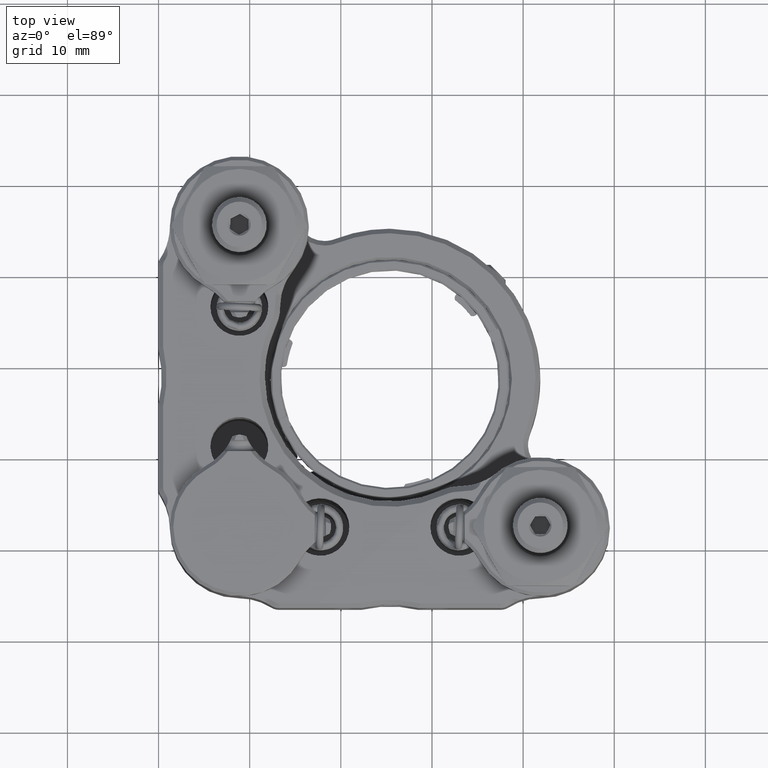
[diagram: clean part render]
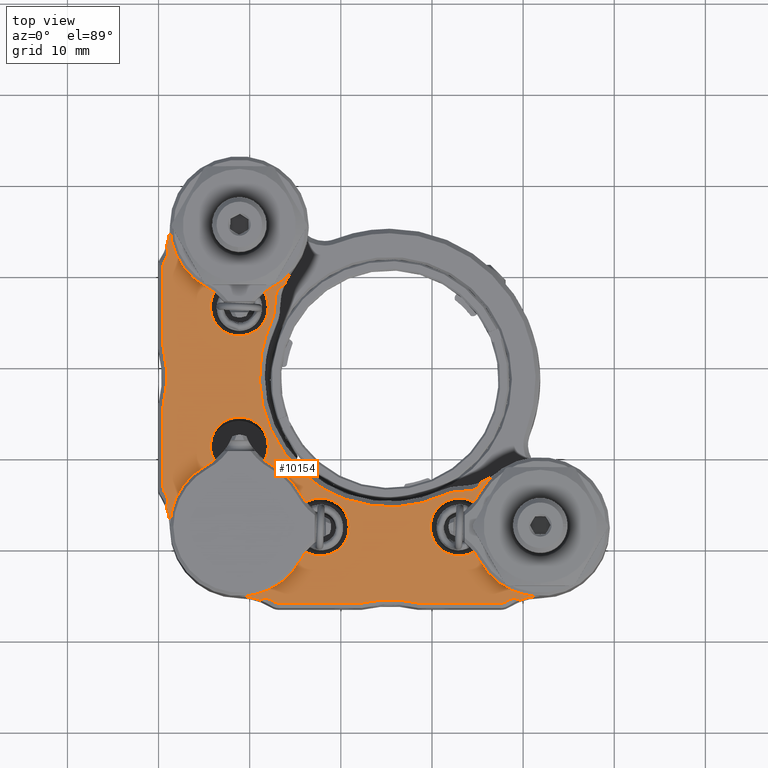
[diagram: same view with one face highlighted and labeled with its STEP entity id]
A machine part, top view. The second image highlights one B-rep face of the part: STEP entity #10154.
In plain terms, the highlighted planar face has unit normal (0, 0, 1).
Its self-contained STEP definition (entity closure, byte-faithful):
#7 = CIRCLE ( 'NONE', #15374, 6.477000000000020741 ) ;
#67 = EDGE_CURVE ( 'NONE', #1891, #23634, #3788, .T. ) ;
#154 = DIRECTION ( 'NONE',  ( -0.000000000000000000, -0.000000000000000000, -1.000000000000000000 ) ) ;
#177 = EDGE_CURVE ( 'NONE', #6340, #20230, #8902, .T. ) ;
#183 = CARTESIAN_POINT ( 'NONE',  ( 12.38436093444902397, 34.61800084301665237, 38.37670909685328979 ) ) ;
#208 = B_SPLINE_CURVE_WITH_KNOTS ( 'NONE', 3,
 ( #9120, #16642, #18723, #1840, #9362, #8883, #16880, #24399, #7515, #5066, #12596, #20059 ),
 .UNSPECIFIED., .F., .F.,
 ( 4, 1, 1, 1, 1, 1, 1, 1, 1, 4 ),
 ( 0.000000000000000000, 0.1110536644831231351, 0.2228147433250605713, 0.3350914532097074017, 0.4476793621340340312, 0.5603666851512870695, 0.6709317720869432122, 0.7811858728531476670, 0.8909357211705750679, 1.000000000000000000 ),
 .UNSPECIFIED. ) ;
#216 = CARTESIAN_POINT ( 'NONE',  ( 0.4955960652789220822, 31.87936282421342682, 38.37670909685328979 ) ) ;
#238 = CARTESIAN_POINT ( 'NONE',  ( 35.18016554447005717, 16.60608547644397959, 38.37670909685328979 ) ) ;
#259 = CARTESIAN_POINT ( 'NONE',  ( 0.6752672816755024288, 26.31757502265822524, 38.37670909685328269 ) ) ;
#264 = ORIENTED_EDGE ( 'NONE', *, *, #18155, .F. ) ;
#277 = ORIENTED_EDGE ( 'NONE', *, *, #20512, .T. ) ;
#313 = DIRECTION ( 'NONE',  ( -0.000000000000000000, -0.000000000000000000, -1.000000000000000000 ) ) ;
#351 = AXIS2_PLACEMENT_3D ( 'NONE', #21424, #14053, #12099 ) ;
#377 = CARTESIAN_POINT ( 'NONE',  ( 0.7869925526974124175, 27.10424239367214128, 38.37670909685330400 ) ) ;
#385 = CIRCLE ( 'NONE', #6696, 6.477000000000000313 ) ;
#393 = CARTESIAN_POINT ( 'NONE',  ( 11.75484474074690411, 33.01592660146320668, 38.37670909685328979 ) ) ;
#439 = CARTESIAN_POINT ( 'NONE',  ( 17.75115173361346876, 12.11409739724833301, 38.37670909685328979 ) ) ;
#488 = DIRECTION ( 'NONE',  ( -0.000000000000000000, -0.000000000000000000, -1.000000000000000000 ) ) ;
#494 = CARTESIAN_POINT ( 'NONE',  ( 30.02085666411165477, 15.09184691535541134, 38.37670909685329690 ) ) ;
#514 = CARTESIAN_POINT ( 'NONE',  ( 11.57401101959112211, 32.40532955672875914, 38.37670909685328979 ) ) ;
#561 = ORIENTED_EDGE ( 'NONE', *, *, #4339, .F. ) ;
#564 = CARTESIAN_POINT ( 'NONE',  ( 11.60252795403088655, 19.40238537003155983, 38.37670909685328979 ) ) ;
#596 = ORIENTED_EDGE ( 'NONE', *, *, #177, .T. ) ;
#618 = CARTESIAN_POINT ( 'NONE',  ( 0.8718547531415058449, 28.36261813054152370, 38.37670909685331111 ) ) ;
#622 = ORIENTED_EDGE ( 'NONE', *, *, #3273, .T. ) ;
#663 = CARTESIAN_POINT ( 'NONE',  ( 0.8224864522627175489, 15.62362773138319127, 38.37670909685329690 ) ) ;
#669 = DIRECTION ( 'NONE',  ( 1.000000000000000000, 0.000000000000000000, 0.000000000000000000 ) ) ;
#774 = CARTESIAN_POINT ( 'NONE',  ( 1.241151733613526931, 12.11409739724833301, 38.37670909685328979 ) ) ;
#830 = EDGE_CURVE ( 'NONE', #9608, #16998, #2197, .T. ) ;
#853 = CARTESIAN_POINT ( 'NONE',  ( 32.24573960693102492, 15.92250113074362972, 38.37670909685328979 ) ) ;
#898 = CARTESIAN_POINT ( 'NONE',  ( 13.02814777642256239, 38.06831724170653786, 38.37670909685328979 ) ) ;
#945 = CARTESIAN_POINT ( 'NONE',  ( 16.14943970639635040, 14.85547361766537477, 38.37670909685328979 ) ) ;
#970 = CARTESIAN_POINT ( 'NONE',  ( 12.94265206135238877, 3.782039316883916591, 38.37670909685321874 ) ) ;
#984 = DIRECTION ( 'NONE',  ( 1.000000000000000000, -2.185478394931410180E-15, 0.000000000000000000 ) ) ;
#1004 = CARTESIAN_POINT ( 'NONE',  ( 22.11588630664790855, 3.748541728913777682, 38.37670909685328979 ) ) ;
#1092 = CARTESIAN_POINT ( 'NONE',  ( 34.10963585028388678, 16.08075227077968705, 38.37670909685335374 ) ) ;
#1164 = EDGE_CURVE ( 'NONE', #20230, #13868, #4156, .T. ) ;
#1202 = CARTESIAN_POINT ( 'NONE',  ( 28.60233475702758454, 3.748770223523156364, 38.37670909685322584 ) ) ;
#1337 = DIRECTION ( 'NONE',  ( 1.000000000000000000, 0.000000000000000000, 0.000000000000000000 ) ) ;
#1353 = VERTEX_POINT ( 'NONE', #9782 ) ;
#1354 = DIRECTION ( 'NONE',  ( 0.000000000000000000, 0.000000000000000000, 1.000000000000000000 ) ) ;
#1358 = DIRECTION ( 'NONE',  ( 1.000000000000000000, 0.000000000000000000, 0.000000000000000000 ) ) ;
#1394 = CARTESIAN_POINT ( 'NONE',  ( 0.5157462184771712810, 31.70719983981903312, 38.37670909685329690 ) ) ;
#1506 = VERTEX_POINT ( 'NONE', #7294 ) ;
#1542 = CARTESIAN_POINT ( 'NONE',  ( 21.23734720772224449, 18.86355623382385360, 38.37670909685328979 ) ) ;
#1607 = CARTESIAN_POINT ( 'NONE',  ( 12.38436093444902397, 34.61800084301665237, 38.37670909685328979 ) ) ;
#1663 = EDGE_CURVE ( 'NONE', #15856, #23557, #23016, .T. ) ;
#1703 = EDGE_CURVE ( 'NONE', #20337, #20563, #15983, .T. ) ;
#1707 = DIRECTION ( 'NONE',  ( -0.000000000000000000, -0.000000000000000000, -1.000000000000000000 ) ) ;
#1738 = DIRECTION ( 'NONE',  ( 1.000000000000000000, 0.000000000000000000, 0.000000000000000000 ) ) ;
#1780 = CARTESIAN_POINT ( 'NONE',  ( 32.13840208789036268, 3.748541728913777682, 38.37670909685328979 ) ) ;
#1807 = DIRECTION ( 'NONE',  ( -0.000000000000000000, -0.000000000000000000, -1.000000000000000000 ) ) ;
#1839 = VERTEX_POINT ( 'NONE', #5747 ) ;
#1840 = CARTESIAN_POINT ( 'NONE',  ( 27.08716817305793967, 4.022155456177253896, 38.37670909685326848 ) ) ;
#1891 = VERTEX_POINT ( 'NONE', #663 ) ;
#1921 = VERTEX_POINT ( 'NONE', #8180 ) ;
#1976 = CARTESIAN_POINT ( 'NONE',  ( 0.6940234623374341716, 30.82469068286791369, 38.37670909685328979 ) ) ;
#2065 = CARTESIAN_POINT ( 'NONE',  ( 0.6517330947429474941, 41.34425421594671235, 38.37670909685322584 ) ) ;
#2082 = CIRCLE ( 'NONE', #6422, 6.476999999999996760 ) ;
#2112 = CARTESIAN_POINT ( 'NONE',  ( 39.62308554504676295, 4.087737074255221259, 38.37670909685328979 ) ) ;
#2138 = CARTESIAN_POINT ( 'NONE',  ( 41.88115173361350685, 4.494097397248490111, 38.37670909685328979 ) ) ;
#2172 = EDGE_CURVE ( 'NONE', #21643, #18780, #3365, .T. ) ;
#2190 = EDGE_CURVE ( 'NONE', #23557, #15430, #9800, .T. ) ;
#2196 = EDGE_CURVE ( 'NONE', #7892, #1921, #14807, .T. ) ;
#2197 = B_SPLINE_CURVE_WITH_KNOTS ( 'NONE', 3,
 ( #5579, #9155, #13120, #9387, #3717, #12755, #16908, #7545, #11376, #1976, #9512, #22072, #3352, #10884, #18377, #7894, #17151, #618, #17381, #9755, #6305, #19467, #5939, #377, #15557, #17267, #11635, #23049, #13469, #4095, #259, #19124, #20953, #15432, #13826 ),
 .UNSPECIFIED., .F., .F.,
 ( 4, 1, 1, 1, 1, 2, 2, 1, 1, 2, 2, 2, 1, 1, 1, 2, 2, 1, 1, 1, 1, 2, 2, 4 ),
 ( 0.000000000000000000, 0.06250000000000655032, 0.09375000000001146305, 0.1093750000000129341, 0.1171875000000147521, 0.1210937500000156680, 0.1250000000000165701, 0.1875000000000206779, 0.2187500000000227318, 0.2343750000000237588, 0.2500000000000247580, 0.5000000000000361933, 0.6250000000000410783, 0.6875000000000435207, 0.7187500000000438538, 0.7343750000000449640, 0.7500000000000460743, 0.8125000000000470735, 0.8437500000000475175, 0.8593750000000469624, 0.8671875000000467404, 0.8710937500000456302, 0.8750000000000446310, 1.000000000000000000 ),
 .UNSPECIFIED. ) ;
#2209 = CARTESIAN_POINT ( 'NONE',  ( 32.99297983232990816, 15.99445688247542385, 38.37670909685328979 ) ) ;
#2220 = CARTESIAN_POINT ( 'NONE',  ( 12.86354231730621933, 21.68415005227346271, 38.37670909685330400 ) ) ;
#2278 = AXIS2_PLACEMENT_3D ( 'NONE', #19677, #14290, #1337 ) ;
#2282 = EDGE_CURVE ( 'NONE', #15104, #14595, #8481, .T. ) ;
#2375 = CARTESIAN_POINT ( 'NONE',  ( 0.6870525337700547075, 41.40067326300700756, 38.37670909685657250 ) ) ;
#2408 = VERTEX_POINT ( 'NONE', #23526 ) ;
#2415 = DIRECTION ( 'NONE',  ( -1.000000000000000000, 0.000000000000000000, 0.000000000000000000 ) ) ;
#2418 = VERTEX_POINT ( 'NONE', #4811 ) ;
#2447 = CARTESIAN_POINT ( 'NONE',  ( 22.13583710122836834, 14.67310542938333562, 38.37670909685328979 ) ) ;
#2525 = ORIENTED_EDGE ( 'NONE', *, *, #6129, .T. ) ;
#2578 = CARTESIAN_POINT ( 'NONE',  ( 27.55922645416164940, 14.48479695365101527, 38.37670909685328979 ) ) ;
#2602 = CARTESIAN_POINT ( 'NONE',  ( 13.78516344865819043, 38.63748849390084672, 38.37670909685328979 ) ) ;
#2625 = CARTESIAN_POINT ( 'NONE',  ( 0.5023019450091797955, 25.46939542328768269, 38.37670909685325427 ) ) ;
#2673 = CARTESIAN_POINT ( 'NONE',  ( 0.4955960652789220822, 40.79002902762141503, 38.37670909685328979 ) ) ;
#2677 = EDGE_CURVE ( 'NONE', #15430, #5882, #10386, .T. ) ;
#2698 = VERTEX_POINT ( 'NONE', #10179 ) ;
#2723 = CARTESIAN_POINT ( 'NONE',  ( 12.92263567735286145, 37.85627406329982847, 38.37670909685328979 ) ) ;
#2791 = CARTESIAN_POINT ( 'NONE',  ( 28.46246146862687354, 3.766829974628029820, 38.37670909685329690 ) ) ;
#2911 = VECTOR ( 'NONE', #20603, 1000.000000000000000 ) ;
#2964 = DIRECTION ( 'NONE',  ( 0.000000000000000000, 0.000000000000000000, 1.000000000000000000 ) ) ;
#2967 = VERTEX_POINT ( 'NONE', #7079 ) ;
#3039 = CARTESIAN_POINT ( 'NONE',  ( 15.55098712502337222, 8.465741269369299715, 38.37670909685328979 ) ) ;
#3040 = CARTESIAN_POINT ( 'NONE',  ( 13.00951303236838186, 3.767007923499976929, 38.37670909685322584 ) ) ;
#3066 = ORIENTED_EDGE ( 'NONE', *, *, #5131, .F. ) ;
#3233 = VERTEX_POINT ( 'NONE', #7180 ) ;
#3273 = EDGE_CURVE ( 'NONE', #14052, #22757, #4978, .T. ) ;
#3287 = ORIENTED_EDGE ( 'NONE', *, *, #22069, .F. ) ;
#3324 = VERTEX_POINT ( 'NONE', #14211 ) ;
#3352 = CARTESIAN_POINT ( 'NONE',  ( 0.7673830441813436209, 30.31021214766289162, 38.37670909685328979 ) ) ;
#3360 = CARTESIAN_POINT ( 'NONE',  ( 0.4958245598883168626, 31.85528042066255949, 38.37670909685322584 ) ) ;
#3365 = CIRCLE ( 'NONE', #17153, 6.477000000000002089 ) ;
#3375 = DIRECTION ( 'NONE',  ( -1.000000000000000000, 0.000000000000000000, 0.000000000000000000 ) ) ;
#3481 = CARTESIAN_POINT ( 'NONE',  ( 12.37068206774825896, 4.075432115897614338, 38.37670909685328979 ) ) ;
#3488 = CARTESIAN_POINT ( 'NONE',  ( 8.861151733613644055, 21.00409739724833358, 38.37670909685328979 ) ) ;
#3500 = CARTESIAN_POINT ( 'NONE',  ( 39.00821912320733986, 2.976503847927632673, 38.37670909685328979 ) ) ;
#3508 = CARTESIAN_POINT ( 'NONE',  ( 11.96478324836953355, 33.60161499620866010, 38.37670909685328979 ) ) ;
#3532 = EDGE_CURVE ( 'NONE', #11609, #15495, #15451, .T. ) ;
#3542 = CARTESIAN_POINT ( 'NONE',  ( 0.5140622598650981256, 40.98573609849339050, 38.37670909685322584 ) ) ;
#3554 = ORIENTED_EDGE ( 'NONE', *, *, #23584, .F. ) ;
#3595 = CARTESIAN_POINT ( 'NONE',  ( 0.5018832821274912259, 31.78187945392570768, 38.37670909685331821 ) ) ;
#3619 = ORIENTED_EDGE ( 'NONE', *, *, #20896, .F. ) ;
#3679 = VERTEX_POINT ( 'NONE', #21719 ) ;
#3717 = CARTESIAN_POINT ( 'NONE',  ( 0.6581527438159207044, 31.02488902221040945, 38.37670909685328979 ) ) ;
#3731 = CARTESIAN_POINT ( 'NONE',  ( 21.23734720772239726, 5.364638560672374545, 38.37670909685328979 ) ) ;
#3733 = VERTEX_POINT ( 'NONE', #18265 ) ;
#3735 = CARTESIAN_POINT ( 'NONE',  ( 34.59286376082986436, 9.372721176830863143, 38.37670909685328979 ) ) ;
#3740 = CIRCLE ( 'NONE', #9280, 7.619999999999767404 ) ;
#3781 = EDGE_CURVE ( 'NONE', #9845, #10509, #8767, .T. ) ;
#3788 = CIRCLE ( 'NONE', #20693, 1.270000000000015561 ) ;
#3798 = CARTESIAN_POINT ( 'NONE',  ( 0.5989083507306648402, 41.24733027897404014, 38.37670909685321874 ) ) ;
#3801 = DIRECTION ( 'NONE',  ( -0.000000000000000000, -0.000000000000000000, -1.000000000000000000 ) ) ;
#3811 = B_SPLINE_CURVE_WITH_KNOTS ( 'NONE', 3,
 ( #4075, #17133, #238, #7874, #7764, #11731 ),
 .UNSPECIFIED., .F., .F.,
 ( 4, 2, 4 ),
 ( 0.000000000000000000, 0.5000000000000000000, 1.000000000000000000 ),
 .UNSPECIFIED. ) ;
#3843 = B_SPLINE_CURVE_WITH_KNOTS ( 'NONE', 3,
 ( #11440, #20769, #15735, #7965, #19288 ),
 .UNSPECIFIED., .F., .F.,
 ( 4, 1, 4 ),
 ( 2.409954872719146512E-17, 0.0001717361873784960713, 0.0003066707525924551960 ),
 .UNSPECIFIED. ) ;
#3850 = DIRECTION ( 'NONE',  ( 1.000000000000000000, 0.000000000000000000, 0.000000000000000000 ) ) ;
#3856 = DIRECTION ( 'NONE',  ( -0.000000000000000000, -0.000000000000000000, -1.000000000000000000 ) ) ;
#3881 = CARTESIAN_POINT ( 'NONE',  ( 12.19412862448400681, 34.17338430119600901, 38.37670909685329690 ) ) ;
#3951 = CARTESIAN_POINT ( 'NONE',  ( 23.57972695046473532, 14.42853370877505448, 38.37670909685328979 ) ) ;
#4025 = VECTOR ( 'NONE', #19965, 1000.000000000000000 ) ;
#4031 = CARTESIAN_POINT ( 'NONE',  ( 12.42004143109463143, 4.046432885193219420, 38.37670909685657961 ) ) ;
#4050 = CARTESIAN_POINT ( 'NONE',  ( 0.4955960652789220822, 40.79002902762141503, 38.37670909685328979 ) ) ;
#4075 = CARTESIAN_POINT ( 'NONE',  ( 35.38451088181182058, 17.03809650157964128, 38.37670909685328979 ) ) ;
#4076 = CARTESIAN_POINT ( 'NONE',  ( 32.43240289522068309, 15.95459418391246409, 38.37670909685328979 ) ) ;
#4090 = CARTESIAN_POINT ( 'NONE',  ( 13.32398532527555268, 20.89903289220994864, 38.37670909685328979 ) ) ;
#4095 = CARTESIAN_POINT ( 'NONE',  ( 0.6779026985890350687, 26.33265588743645935, 38.37670909685329690 ) ) ;
#4110 = CARTESIAN_POINT ( 'NONE',  ( 11.23181361473330497, 30.81157762427039870, 38.37670909685331111 ) ) ;
#4154 = DIRECTION ( 'NONE',  ( -0.000000000000000000, -0.000000000000000000, -1.000000000000000000 ) ) ;
#4156 = CIRCLE ( 'NONE', #5347, 3.174999999999997158 ) ;
#4163 = CARTESIAN_POINT ( 'NONE',  ( -0.2764418157071950599, 14.98703000765439697, 38.37670909685329690 ) ) ;
#4168 = AXIS2_PLACEMENT_3D ( 'NONE', #16530, #22678, #5809 ) ;
#4203 = VERTEX_POINT ( 'NONE', #9847 ) ;
#4211 = CARTESIAN_POINT ( 'NONE',  ( 29.67614439951547212, 14.97670351789416721, 38.37670909685329690 ) ) ;
#4230 = CARTESIAN_POINT ( 'NONE',  ( 11.94067263501937504, 33.53824504982272714, 38.37670909685328979 ) ) ;
#4243 = CARTESIAN_POINT ( 'NONE',  ( 32.99630792260517609, 23.05872893302826299, 38.37670909685328979 ) ) ;
#4273 = ORIENTED_EDGE ( 'NONE', *, *, #15755, .T. ) ;
#4290 = EDGE_CURVE ( 'NONE', #21159, #14595, #4501, .T. ) ;
#4315 = CARTESIAN_POINT ( 'NONE',  ( 31.36505517938176268, 15.63730659808388523, 38.37670909685328979 ) ) ;
#4330 = CARTESIAN_POINT ( 'NONE',  ( 13.04442159254060307, 21.36758729914661359, 38.37670909685330400 ) ) ;
#4339 = EDGE_CURVE ( 'NONE', #18520, #17587, #5716, .T. ) ;
#4373 = CARTESIAN_POINT ( 'NONE',  ( 0.8224864522627211016, 41.62456706311347432, 38.37670909685328979 ) ) ;
#4379 = CARTESIAN_POINT ( 'NONE',  ( 0.7417030516560364495, 41.48706626996447966, 38.37670909685657250 ) ) ;
#4403 = CARTESIAN_POINT ( 'NONE',  ( 0.5157462184768729641, 25.54099495467687575, 38.37670909685328979 ) ) ;
#4486 = CARTESIAN_POINT ( 'NONE',  ( 0.6630064067489199742, 15.88553429512048609, 38.37670909685328979 ) ) ;
#4488 = EDGE_CURVE ( 'NONE', #2698, #8080, #7090, .T. ) ;
#4501 = CIRCLE ( 'NONE', #17872, 7.619999999999842011 ) ;
#4606 = CARTESIAN_POINT ( 'NONE',  ( 0.5290936532490069233, 16.19559772498726602, 38.37670909685323295 ) ) ;
#4612 = CARTESIAN_POINT ( 'NONE',  ( 12.50818286089736553, 3.994648715290856966, 38.37670909685658671 ) ) ;
#4637 = CARTESIAN_POINT ( 'NONE',  ( 14.77716877998100564, 40.33147912102782584, 38.37670909685328979 ) ) ;
#4668 = CARTESIAN_POINT ( 'NONE',  ( 28.45425417618413633, 3.768691882111999014, 38.37670909685328979 ) ) ;
#4693 = CIRCLE ( 'NONE', #351, 6.477000000000024293 ) ;
#4723 = VERTEX_POINT ( 'NONE', #23061 ) ;
#4754 = VERTEX_POINT ( 'NONE', #10863 ) ;
#4766 = AXIS2_PLACEMENT_3D ( 'NONE', #3500, #18407, #5616 ) ;
#4811 = CARTESIAN_POINT ( 'NONE',  ( 5.686151733613641568, 21.00409739724833358, 38.37670909685328979 ) ) ;
#4834 = CARTESIAN_POINT ( 'NONE',  ( 22.12430173022738344, 3.748625363182293224, 38.37670909685326848 ) ) ;
#4856 = ORIENTED_EDGE ( 'NONE', *, *, #16665, .F. ) ;
#4885 = DIRECTION ( 'NONE',  ( 0.000000000000000000, 0.000000000000000000, 1.000000000000000000 ) ) ;
#4890 = VERTEX_POINT ( 'NONE', #9257 ) ;
#4919 = AXIS2_PLACEMENT_3D ( 'NONE', #439, #4154, #15135 ) ;
#4923 = CARTESIAN_POINT ( 'NONE',  ( 12.74791885188774287, 3.851854014365566847, 38.37670909685321874 ) ) ;
#4958 = EDGE_CURVE ( 'NONE', #3233, #21869, #3811, .T. ) ;
#4978 = LINE ( 'NONE', #18257, #4025 ) ;
#5036 = DIRECTION ( 'NONE',  ( 0.000000000000000000, 0.000000000000000000, 1.000000000000000000 ) ) ;
#5066 = CARTESIAN_POINT ( 'NONE',  ( 22.95496992010462733, 3.916075550506173286, 38.37670909685327558 ) ) ;
#5121 = CIRCLE ( 'NONE', #8241, 7.619999999999842011 ) ;
#5131 = EDGE_CURVE ( 'NONE', #15856, #22345, #18207, .T. ) ;
#5184 = ORIENTED_EDGE ( 'NONE', *, *, #20094, .T. ) ;
#5297 = CIRCLE ( 'NONE', #8029, 3.175000000000000711 ) ;
#5307 = B_SPLINE_CURVE_WITH_KNOTS ( 'NONE', 3,
 ( #14835, #22324, #3360, #12998, #20464, #3595, #10892, #18383, #6949, #7426 ),
 .UNSPECIFIED., .F., .F.,
 ( 4, 1, 1, 1, 1, 1, 1, 4 ),
 ( 0.000000000000000000, 2.433994098074037423E-05, 4.863949341362251380E-05, 7.291449240922209406E-05, 9.718058732157807810E-05, 0.0001226095285271820397, 0.0001480637752878644065, 0.0001735615155480441432 ),
 .UNSPECIFIED. ) ;
#5333 = ORIENTED_EDGE ( 'NONE', *, *, #7684, .T. ) ;
#5342 = CARTESIAN_POINT ( 'NONE',  ( 35.19131634220291716, 15.76245352512689557, 38.37670909685328979 ) ) ;
#5347 = AXIS2_PLACEMENT_3D ( 'NONE', #10601, #19686, #23525 ) ;
#5393 = ORIENTED_EDGE ( 'NONE', *, *, #23735, .F. ) ;
#5431 = ORIENTED_EDGE ( 'NONE', *, *, #16226, .T. ) ;
#5448 = DIRECTION ( 'NONE',  ( -0.000000000000000000, -0.000000000000000000, -1.000000000000000000 ) ) ;
#5522 = AXIS2_PLACEMENT_3D ( 'NONE', #23845, #14241, #17801 ) ;
#5535 = VERTEX_POINT ( 'NONE', #11452 ) ;
#5547 = ORIENTED_EDGE ( 'NONE', *, *, #18440, .F. ) ;
#5560 = EDGE_CURVE ( 'NONE', #9768, #1506, #16287, .T. ) ;
#5579 = CARTESIAN_POINT ( 'NONE',  ( 0.5157462184771712810, 31.70719983981903312, 38.37670909685329690 ) ) ;
#5591 = CARTESIAN_POINT ( 'NONE',  ( 37.99438461533913625, 3.851854014365486911, 38.37670909685322584 ) ) ;
#5616 = DIRECTION ( 'NONE',  ( 1.000000000000000000, 3.414809992080290862E-15, 0.000000000000000000 ) ) ;
#5661 = CARTESIAN_POINT ( 'NONE',  ( 0.5290936532490100319, 41.05259706950933207, 38.37670909685321874 ) ) ;
#5693 = CARTESIAN_POINT ( 'NONE',  ( -5.235848266386701866, 12.11409739724832235, 38.37670909685328979 ) ) ;
#5716 = LINE ( 'NONE', #9770, #2911 ) ;
#5747 = CARTESIAN_POINT ( 'NONE',  ( 13.78516344865819043, 38.63748849390084672, 38.37670909685328979 ) ) ;
#5809 = DIRECTION ( 'NONE',  ( 1.000000000000000000, -1.419489643766718154E-14, 0.000000000000000000 ) ) ;
#5815 = CARTESIAN_POINT ( 'NONE',  ( 25.38411258108517998, 14.28715967470755643, 38.37670909685328979 ) ) ;
#5831 = ORIENTED_EDGE ( 'NONE', *, *, #2282, .T. ) ;
#5882 = VERTEX_POINT ( 'NONE', #18796 ) ;
#5904 = DIRECTION ( 'NONE',  ( 1.000000000000000000, 1.229331597148903322E-14, 0.000000000000000000 ) ) ;
#5934 = CARTESIAN_POINT ( 'NONE',  ( 28.62699423142782251, 14.69096499421558377, 38.37670909685328979 ) ) ;
#5939 = CARTESIAN_POINT ( 'NONE',  ( 0.7903750614217812664, 27.13475342297903481, 38.37670909685330400 ) ) ;
#5953 = CARTESIAN_POINT ( 'NONE',  ( 10.99774249357643363, 29.00008945594158050, 38.37670909685328269 ) ) ;
#6083 = DIRECTION ( 'NONE',  ( -1.000000000000000000, 0.000000000000000000, 0.000000000000000000 ) ) ;
#6086 = CARTESIAN_POINT ( 'NONE',  ( 11.85861473182862902, 33.31544134893639608, 38.37670909685328979 ) ) ;
#6096 = CARTESIAN_POINT ( 'NONE',  ( 0.9935581842928187246, 42.26116478684227218, 38.37670909685328979 ) ) ;
#6129 = EDGE_CURVE ( 'NONE', #9547, #3679, #18324, .T. ) ;
#6180 = CARTESIAN_POINT ( 'NONE',  ( 30.58043351888250427, 15.30885854565100068, 38.37670909685329690 ) ) ;
#6206 = CARTESIAN_POINT ( 'NONE',  ( 12.87492903203330386, 37.61571259436085057, 38.37670909685328979 ) ) ;
#6305 = CARTESIAN_POINT ( 'NONE',  ( 0.8073501095597914734, 27.29595203836036532, 38.37670909685328269 ) ) ;
#6340 = VERTEX_POINT ( 'NONE', #3735 ) ;
#6367 = EDGE_CURVE ( 'NONE', #2418, #11609, #16531, .T. ) ;
#6394 = CARTESIAN_POINT ( 'NONE',  ( 28.62641716057850161, 3.748541728913715065, 38.37670909685325427 ) ) ;
#6405 = CARTESIAN_POINT ( 'NONE',  ( 34.27844610519666446, 16.11217768303501074, 38.37670909685331111 ) ) ;
#6422 = AXIS2_PLACEMENT_3D ( 'NONE', #4243, #6454, #21339 ) ;
#6454 = DIRECTION ( 'NONE',  ( -0.000000000000000000, -0.000000000000000000, -1.000000000000000000 ) ) ;
#6515 = CARTESIAN_POINT ( 'NONE',  ( 28.52893379029081800, 3.754828945762327397, 38.37670909685331821 ) ) ;
#6540 = ORIENTED_EDGE ( 'NONE', *, *, #10075, .F. ) ;
#6556 = EDGE_CURVE ( 'NONE', #4723, #15019, #22040, .T. ) ;
#6579 = CARTESIAN_POINT ( 'NONE',  ( 12.59457586785475058, 3.939998197404931179, 38.37670909685657961 ) ) ;
#6696 = AXIS2_PLACEMENT_3D ( 'NONE', #17553, #8310, #8188 ) ;
#6914 = ORIENTED_EDGE ( 'NONE', *, *, #11786, .F. ) ;
#6929 = DIRECTION ( 'NONE',  ( -0.000000000000000000, -0.000000000000000000, -1.000000000000000000 ) ) ;
#6949 = CARTESIAN_POINT ( 'NONE',  ( 0.5138843109931973130, 31.71540713226175967, 38.37670909685329690 ) ) ;
#6965 = CARTESIAN_POINT ( 'NONE',  ( 12.03615173361364654, 36.24409739724833202, 38.37670909685328979 ) ) ;
#7005 = CARTESIAN_POINT ( 'NONE',  ( 35.19131634220313742, 8.465741269369379651, 38.37670909685328979 ) ) ;
#7036 = CARTESIAN_POINT ( 'NONE',  ( 8.861151733613292336, 12.11409739724833301, 38.37670909685328979 ) ) ;
#7051 = VERTEX_POINT ( 'NONE', #17470 ) ;
#7079 = CARTESIAN_POINT ( 'NONE',  ( 12.63258863148555555, 3.915952070383796446, 38.37670909685328979 ) ) ;
#7090 = B_SPLINE_CURVE_WITH_KNOTS ( 'NONE', 3,
 ( #17395, #8033, #15564, #5591, #13130, #16920, #8396, #15798, #11996, #23305, #8148, #16044 ),
 .UNSPECIFIED., .F., .F.,
 ( 4, 1, 1, 1, 1, 1, 1, 1, 1, 4 ),
 ( 0.000000000000000000, 6.788893391202076755E-05, 0.0001353486219821802298, 0.0002025145720739760197, 0.0002695107963978333001, 0.0003364539762344799317, 0.0004022610529734794473, 0.0004682380276493770354, 0.0005345027875534671697, 0.0006011840429156051473 ),
 .UNSPECIFIED. ) ;
#7098 = AXIS2_PLACEMENT_3D ( 'NONE', #21976, #23955, #16807 ) ;
#7173 = VECTOR ( 'NONE', #23293, 1000.000000000000000 ) ;
#7180 = CARTESIAN_POINT ( 'NONE',  ( 35.38451088181182058, 17.03809650157964128, 38.37670909685328979 ) ) ;
#7219 = CARTESIAN_POINT ( 'NONE',  ( 17.75115173361346876, 12.11409739724833301, 38.37670909685328979 ) ) ;
#7268 = VERTEX_POINT ( 'NONE', #22625 ) ;
#7288 = CARTESIAN_POINT ( 'NONE',  ( 29.50495625950411593, 18.86355623382385360, 38.37670909685328979 ) ) ;
#7290 = CARTESIAN_POINT ( 'NONE',  ( 8.861151733613645831, 45.13409739724845338, 38.37670909685328979 ) ) ;
#7294 = CARTESIAN_POINT ( 'NONE',  ( 11.73408434401946998, 4.246503847927716180, 38.37670909685328979 ) ) ;
#7399 = CIRCLE ( 'NONE', #2278, 1.270000000000014229 ) ;
#7426 = CARTESIAN_POINT ( 'NONE',  ( 0.5157462184771712810, 31.70719983981903312, 38.37670909685329690 ) ) ;
#7431 = AXIS2_PLACEMENT_3D ( 'NONE', #7288, #6929, #12609 ) ;
#7443 = EDGE_CURVE ( 'NONE', #19994, #15495, #15832, .T. ) ;
#7486 = DIRECTION ( 'NONE',  ( -0.000000000000000000, -0.000000000000000000, -1.000000000000000000 ) ) ;
#7489 = ORIENTED_EDGE ( 'NONE', *, *, #1164, .T. ) ;
#7515 = CARTESIAN_POINT ( 'NONE',  ( 23.63043236707065375, 4.018793530060095875, 38.37670909685328269 ) ) ;
#7532 = CARTESIAN_POINT ( 'NONE',  ( 12.61449817399354245, 35.13589714936236419, 38.37670909685328979 ) ) ;
#7545 = CARTESIAN_POINT ( 'NONE',  ( 0.6707767699948714579, 30.95585384594103928, 38.37670909685329690 ) ) ;
#7566 = CIRCLE ( 'NONE', #15438, 3.175000000000000711 ) ;
#7670 = CARTESIAN_POINT ( 'NONE',  ( 26.47055007258569148, 14.34424125510832759, 38.37670909685328979 ) ) ;
#7684 = EDGE_CURVE ( 'NONE', #9845, #2418, #7566, .T. ) ;
#7687 = CARTESIAN_POINT ( 'NONE',  ( 6.119775513196177741, 19.40238537003193642, 38.37670909685328979 ) ) ;
#7742 = CARTESIAN_POINT ( 'NONE',  ( 0.5483680469870982899, 41.11906931882678151, 38.37670909685322584 ) ) ;
#7749 = ORIENTED_EDGE ( 'NONE', *, *, #24310, .F. ) ;
#7764 = CARTESIAN_POINT ( 'NONE',  ( 34.60385525189228417, 16.17568582302490654, 38.37670909685329690 ) ) ;
#7776 = CARTESIAN_POINT ( 'NONE',  ( 19.07768561949591302, 15.77850265189336199, 38.37670909685328979 ) ) ;
#7827 = CARTESIAN_POINT ( 'NONE',  ( 0.7934872215583396171, 41.57520769976713382, 38.37670909685657250 ) ) ;
#7865 = CIRCLE ( 'NONE', #15757, 1.270000000000012452 ) ;
#7874 = CARTESIAN_POINT ( 'NONE',  ( 34.81555263887436524, 16.28089020465142767, 38.37670909685328269 ) ) ;
#7889 = CARTESIAN_POINT ( 'NONE',  ( 12.77524609468842520, 21.84568494314090259, 38.37670909685329690 ) ) ;
#7892 = VERTEX_POINT ( 'NONE', #6096 ) ;
#7894 = CARTESIAN_POINT ( 'NONE',  ( 0.8424803800831450751, 29.65867205113472238, 38.37670909685328979 ) ) ;
#7965 = CARTESIAN_POINT ( 'NONE',  ( 38.14772759937206104, 3.939998197404874780, 38.37670909685659382 ) ) ;
#8029 = AXIS2_PLACEMENT_3D ( 'NONE', #23764, #8474, #14405 ) ;
#8033 = CARTESIAN_POINT ( 'NONE',  ( 38.09130855231178003, 3.904678758377772230, 38.37670909685321874 ) ) ;
#8046 = CARTESIAN_POINT ( 'NONE',  ( 0.5034280512784787831, 16.32886975185273570, 38.37670909685323295 ) ) ;
#8063 = CARTESIAN_POINT ( 'NONE',  ( 0.5157462184768729641, 25.54099495467687575, 38.37670909685328979 ) ) ;
#8080 = VERTEX_POINT ( 'NONE', #18626 ) ;
#8148 = CARTESIAN_POINT ( 'NONE',  ( 37.55827474563724167, 3.748943838127205108, 38.37670909685321874 ) ) ;
#8170 = DIRECTION ( 'NONE',  ( -0.000000000000000000, -0.000000000000000000, -1.000000000000000000 ) ) ;
#8180 = CARTESIAN_POINT ( 'NONE',  ( 0.8347914106204418205, 42.87603120868145368, 38.37670909685317611 ) ) ;
#8188 = DIRECTION ( 'NONE',  ( 1.000000000000000000, 5.356564693459339226E-15, 0.000000000000000000 ) ) ;
#8224 = CARTESIAN_POINT ( 'NONE',  ( 11.61439956670863261, 24.69039808305371864, 38.37670909685328269 ) ) ;
#8241 = AXIS2_PLACEMENT_3D ( 'NONE', #24084, #11030, #3375 ) ;
#8310 = DIRECTION ( 'NONE',  ( -0.000000000000000000, -0.000000000000000000, -1.000000000000000000 ) ) ;
#8345 = CARTESIAN_POINT ( 'NONE',  ( 29.50495625950396317, 5.364638560672374545, 38.37670909685328979 ) ) ;
#8348 = CARTESIAN_POINT ( 'NONE',  ( 0.6870525337700298385, 15.84752153148968823, 38.37670909685657961 ) ) ;
#8396 = CARTESIAN_POINT ( 'NONE',  ( 37.79965140587442818, 3.782039316883831770, 38.37670909685321874 ) ) ;
#8432 = CARTESIAN_POINT ( 'NONE',  ( 0.5104074525255818395, 25.51751066314637839, 38.37670909685324716 ) ) ;
#8474 = DIRECTION ( 'NONE',  ( -0.000000000000000000, -0.000000000000000000, -1.000000000000000000 ) ) ;
#8477 = CARTESIAN_POINT ( 'NONE',  ( 13.18402872158956818, 3.748943838127289485, 38.37670909685322584 ) ) ;
#8481 = CIRCLE ( 'NONE', #4168, 6.477000000000031399 ) ;
#8517 = DIRECTION ( 'NONE',  ( -1.000000000000000000, 0.000000000000000000, 0.000000000000000000 ) ) ;
#8551 = CIRCLE ( 'NONE', #22321, 3.175000000000000711 ) ;
#8570 = ORIENTED_EDGE ( 'NONE', *, *, #17974, .F. ) ;
#8580 = CARTESIAN_POINT ( 'NONE',  ( 34.36276693072596089, 16.12787469566814025, 38.37670909685328979 ) ) ;
#8703 = CARTESIAN_POINT ( 'NONE',  ( 11.96074622682672839, 33.59106138881092107, 38.37670909685330400 ) ) ;
#8711 = ORIENTED_EDGE ( 'NONE', *, *, #4958, .T. ) ;
#8725 = CARTESIAN_POINT ( 'NONE',  ( 13.14177832103617938, 3.749745544954072418, 38.37670909685322584 ) ) ;
#8767 = CIRCLE ( 'NONE', #17041, 6.477000000000009194 ) ;
#8831 = VECTOR ( 'NONE', #9307, 1000.000000000000000 ) ;
#8883 = CARTESIAN_POINT ( 'NONE',  ( 25.69563052600467401, 4.126933891821753519, 38.37670909685326848 ) ) ;
#8902 = CIRCLE ( 'NONE', #12068, 3.174999999999997158 ) ;
#9018 = CARTESIAN_POINT ( 'NONE',  ( 12.03615173361364477, 21.00409739724833358, 38.37670909685328979 ) ) ;
#9120 = CARTESIAN_POINT ( 'NONE',  ( 28.45425417618413633, 3.768691882111999014, 38.37670909685328979 ) ) ;
#9143 = DIRECTION ( 'NONE',  ( -0.000000000000000000, -0.000000000000000000, 1.000000000000000000 ) ) ;
#9155 = CARTESIAN_POINT ( 'NONE',  ( 0.5527938928083925285, 31.53933109440058757, 38.37670909685330400 ) ) ;
#9237 = CIRCLE ( 'NONE', #4919, 3.175000000000000711 ) ;
#9257 = CARTESIAN_POINT ( 'NONE',  ( 20.92615173361346947, 12.11409739724833301, 38.37670909685328979 ) ) ;
#9280 = AXIS2_PLACEMENT_3D ( 'NONE', #7036, #12736, #8517 ) ;
#9307 = DIRECTION ( 'NONE',  ( 1.000000000000000000, 0.000000000000000000, -0.000000000000000000 ) ) ;
#9320 = CARTESIAN_POINT ( 'NONE',  ( 12.05561866692576167, 33.83810532993024367, 38.37670909685329690 ) ) ;
#9362 = CARTESIAN_POINT ( 'NONE',  ( 26.39334182759852609, 4.092731769619485149, 38.37670909685328269 ) ) ;
#9387 = CARTESIAN_POINT ( 'NONE',  ( 0.6412167288133668874, 31.11371144419296186, 38.37670909685328979 ) ) ;
#9389 = B_SPLINE_CURVE_WITH_KNOTS ( 'NONE', 3,
 ( #14189, #12118, #23429, #23545, #21562, #15925, #14071, #21686, #4834, #1004 ),
 .UNSPECIFIED., .F., .F.,
 ( 4, 1, 1, 1, 1, 1, 1, 4 ),
 ( 0.000000000000000000, 2.433994098069797854E-05, 4.863949341351982630E-05, 7.291449240907639084E-05, 9.718058732137874753E-05, 0.0001226095285269497223, 0.0001480637752875925428, 0.0001735615155477096940 ),
 .UNSPECIFIED. ) ;
#9458 = EDGE_CURVE ( 'NONE', #16998, #17587, #15167, .T. ) ;
#9512 = CARTESIAN_POINT ( 'NONE',  ( 0.7238495687733950135, 30.63822880608636723, 38.37670909685328269 ) ) ;
#9547 = VERTEX_POINT ( 'NONE', #4373 ) ;
#9553 = AXIS2_PLACEMENT_3D ( 'NONE', #20193, #1354, #12853 ) ;
#9561 = CARTESIAN_POINT ( 'NONE',  ( 0.8224864522627211016, 41.62456706311347432, 38.37670909685328979 ) ) ;
#9592 = DIRECTION ( 'NONE',  ( 1.000000000000000000, 0.000000000000000000, 0.000000000000000000 ) ) ;
#9608 = VERTEX_POINT ( 'NONE', #1394 ) ;
#9643 = CARTESIAN_POINT ( 'NONE',  ( 17.45342955377333993, 16.62400746861901268, 38.37670909685329690 ) ) ;
#9673 = ORIENTED_EDGE ( 'NONE', *, *, #14444, .T. ) ;
#9721 = DIRECTION ( 'NONE',  ( 1.000000000000000000, -1.092739197465706273E-15, 0.000000000000000000 ) ) ;
#9755 = CARTESIAN_POINT ( 'NONE',  ( 0.8283708051813551965, 27.52178918405195773, 38.37670909685329690 ) ) ;
#9768 = VERTEX_POINT ( 'NONE', #3481 ) ;
#9770 = CARTESIAN_POINT ( 'NONE',  ( 0.4955960652788873877, 16.45816576687524702, 38.37670909685329690 ) ) ;
#9773 = CARTESIAN_POINT ( 'NONE',  ( 11.44147507252707108, 31.87983471343656205, 38.37670909685328979 ) ) ;
#9782 = CARTESIAN_POINT ( 'NONE',  ( 22.28804929104198607, 3.768691882111749436, 38.37670909685328979 ) ) ;
#9800 = B_SPLINE_CURVE_WITH_KNOTS ( 'NONE', 3,
 ( #1607, #7532, #15064, #16661 ),
 .UNSPECIFIED., .F., .F.,
 ( 4, 4 ),
 ( 0.000000000000000000, 1.000000000000000000 ),
 .UNSPECIFIED. ) ;
#9809 = AXIS2_PLACEMENT_3D ( 'NONE', #21544, #488, #984 ) ;
#9837 = EDGE_CURVE ( 'NONE', #18384, #4203, #16612, .T. ) ;
#9845 = VERTEX_POINT ( 'NONE', #7687 ) ;
#9847 = CARTESIAN_POINT ( 'NONE',  ( 16.14943970639668080, 9.372721176831099399, 38.37670909685328979 ) ) ;
#9850 = AXIS2_PLACEMENT_3D ( 'NONE', #20721, #3856, #13973 ) ;
#9869 = CARTESIAN_POINT ( 'NONE',  ( 30.46381307168684671, 15.26247476947826343, 38.37670909685328979 ) ) ;
#9902 = CARTESIAN_POINT ( 'NONE',  ( 0.5483680469870810814, 16.12912547566991961, 38.37670909685323295 ) ) ;
#9946 = DIRECTION ( 'NONE',  ( 1.000000000000000000, -7.854062981784668351E-15, 0.000000000000000000 ) ) ;
#9991 = CIRCLE ( 'NONE', #10414, 7.619999999999842011 ) ;
#10000 = CARTESIAN_POINT ( 'NONE',  ( 11.92549794276149910, 23.64941100533870966, 38.37670909685328269 ) ) ;
#10068 = AXIS2_PLACEMENT_3D ( 'NONE', #18993, #9143, #1738 ) ;
#10075 = EDGE_CURVE ( 'NONE', #5535, #18384, #3740, .T. ) ;
#10099 = ORIENTED_EDGE ( 'NONE', *, *, #12797, .F. ) ;
#10144 = CARTESIAN_POINT ( 'NONE',  ( 13.55112826181630226, 38.56214800916779950, 38.37670909685329690 ) ) ;
#10154 = ADVANCED_FACE ( 'NONE', ( #14562 ), #19847, .T. ) ;
#10165 = CARTESIAN_POINT ( 'NONE',  ( 0.4955960652788943266, 25.36883197028323877, 38.37670909685329690 ) ) ;
#10179 = CARTESIAN_POINT ( 'NONE',  ( 38.10971483574125784, 3.915952070383740935, 38.37670909685328979 ) ) ;
#10275 = CARTESIAN_POINT ( 'NONE',  ( 0.4955960652788873877, 16.45816576687524702, 38.37670909685329690 ) ) ;
#10342 = ORIENTED_EDGE ( 'NONE', *, *, #18439, .F. ) ;
#10343 = CARTESIAN_POINT ( 'NONE',  ( 28.57800755649700264, 3.750010360916995467, 38.37670909685355269 ) ) ;
#10344 = CARTESIAN_POINT ( 'NONE',  ( 12.65099491491503159, 3.904678758377834846, 38.37670909685323295 ) ) ;
#10386 = B_SPLINE_CURVE_WITH_KNOTS ( 'NONE', 3,
 ( #23724, #19633, #14242, #14010 ),
 .UNSPECIFIED., .F., .F.,
 ( 4, 4 ),
 ( 0.000000000000000000, 1.000000000000000000 ),
 .UNSPECIFIED. ) ;
#10414 = AXIS2_PLACEMENT_3D ( 'NONE', #15758, #5036, #23509 ) ;
#10453 = CARTESIAN_POINT ( 'NONE',  ( 11.11921792218020855, 4.087737074255297642, 38.37670909685317611 ) ) ;
#10460 = CARTESIAN_POINT ( 'NONE',  ( 5.212795605734617865, 38.44426200583820474, 38.37670909685328979 ) ) ;
#10472 = ORIENTED_EDGE ( 'NONE', *, *, #20029, .T. ) ;
#10477 = CARTESIAN_POINT ( 'NONE',  ( 33.85482317682605924, 16.04543718958182552, 38.37670909685327558 ) ) ;
#10509 = VERTEX_POINT ( 'NONE', #13697 ) ;
#10601 = CARTESIAN_POINT ( 'NONE',  ( 32.99115173361346365, 12.11409739724832946, 38.37670909685328979 ) ) ;
#10696 = ORIENTED_EDGE ( 'NONE', *, *, #2190, .T. ) ;
#10716 = CARTESIAN_POINT ( 'NONE',  ( 33.61718067567329626, 16.02056606326949506, 38.37670909685328979 ) ) ;
#10768 = CARTESIAN_POINT ( 'NONE',  ( 12.63258863148555555, 3.915952070383796446, 38.37670909685328979 ) ) ;
#10828 = CARTESIAN_POINT ( 'NONE',  ( 5.686151733613645121, 36.24409739724833202, 38.37670909685328979 ) ) ;
#10863 = CARTESIAN_POINT ( 'NONE',  ( 28.45425417618413633, 3.768691882111999014, 38.37670909685328979 ) ) ;
#10884 = CARTESIAN_POINT ( 'NONE',  ( 0.7755347312584568442, 30.24305909778279400, 38.37670909685330400 ) ) ;
#10892 = CARTESIAN_POINT ( 'NONE',  ( 0.5056007673306296413, 31.75692873305170494, 38.37670909685328269 ) ) ;
#10925 = CARTESIAN_POINT ( 'NONE',  ( 11.96747500544379150, 33.60863359483329305, 38.37670909685330400 ) ) ;
#11030 = DIRECTION ( 'NONE',  ( 0.000000000000000000, 0.000000000000000000, 1.000000000000000000 ) ) ;
#11318 = DIRECTION ( 'NONE',  ( 1.000000000000000000, -3.548724109416808402E-15, 0.000000000000000000 ) ) ;
#11337 = CARTESIAN_POINT ( 'NONE',  ( 0.4959981744923967484, 40.81122040927216688, 38.37670909685321874 ) ) ;
#11376 = CARTESIAN_POINT ( 'NONE',  ( 0.6713748408039892368, 30.95251861827819795, 38.37670909685329690 ) ) ;
#11387 = DIRECTION ( 'NONE',  ( 0.000000000000000000, 0.000000000000000000, 1.000000000000000000 ) ) ;
#11435 = CARTESIAN_POINT ( 'NONE',  ( 8.861151733613136017, -1.982902602751669630, 38.37670909685328979 ) ) ;
#11440 = CARTESIAN_POINT ( 'NONE',  ( 38.37162139947853490, 4.075432115897538843, 38.37670909685328979 ) ) ;
#11452 = CARTESIAN_POINT ( 'NONE',  ( 8.861151733613208847, 4.494097397248562942, 38.37670909685328979 ) ) ;
#11458 = CARTESIAN_POINT ( 'NONE',  ( 0.5717616158679867944, 41.18440364421154953, 38.37670909685321163 ) ) ;
#11464 = VERTEX_POINT ( 'NONE', #21213 ) ;
#11509 = CIRCLE ( 'NONE', #16985, 6.477000000000009194 ) ;
#11535 = EDGE_CURVE ( 'NONE', #5882, #1839, #20360, .T. ) ;
#11582 = DIRECTION ( 'NONE',  ( 0.000000000000000000, 0.000000000000000000, 1.000000000000000000 ) ) ;
#11609 = VERTEX_POINT ( 'NONE', #9018 ) ;
#11616 = CARTESIAN_POINT ( 'NONE',  ( 32.61973651668255059, 15.97747000172010701, 38.37670909685328269 ) ) ;
#11629 = CARTESIAN_POINT ( 'NONE',  ( 19.40501334108996545, 15.62288298092781957, 38.37670909685328979 ) ) ;
#11635 = CARTESIAN_POINT ( 'NONE',  ( 0.7085768433675578848, 26.51623167980774554, 38.37670909685329690 ) ) ;
#11646 = CARTESIAN_POINT ( 'NONE',  ( 11.32181174682311919, 31.34969955710297640, 38.37670909685328979 ) ) ;
#11731 = CARTESIAN_POINT ( 'NONE',  ( 34.36276693072596089, 16.12787469566814025, 38.37670909685328979 ) ) ;
#11733 = CARTESIAN_POINT ( 'NONE',  ( 31.70479714206517130, 15.77587580167016590, 38.37670909685328979 ) ) ;
#11744 = CARTESIAN_POINT ( 'NONE',  ( 21.07987460410381786, 14.94534038765587880, 38.37670909685328979 ) ) ;
#11761 = CARTESIAN_POINT ( 'NONE',  ( 11.95470148637445362, 33.57522630332723423, 38.37670909685329690 ) ) ;
#11786 = EDGE_CURVE ( 'NONE', #11464, #12511, #15123, .T. ) ;
#11804 = CARTESIAN_POINT ( 'NONE',  ( 39.00821912320733986, 2.976503847927632673, 38.37670909685328979 ) ) ;
#11808 = CARTESIAN_POINT ( 'NONE',  ( 29.81615173361346294, 12.11409739724832946, 38.37670909685328979 ) ) ;
#11853 = CARTESIAN_POINT ( 'NONE',  ( 23.22139133128986543, 14.47872009296042961, 38.37670909685328979 ) ) ;
#11907 = AXIS2_PLACEMENT_3D ( 'NONE', #13526, #313, #669 ) ;
#11938 = CARTESIAN_POINT ( 'NONE',  ( 11.73408434401946643, 2.976503847927701951, 38.37670909685328979 ) ) ;
#11979 = ORIENTED_EDGE ( 'NONE', *, *, #14106, .T. ) ;
#11982 = CARTESIAN_POINT ( 'NONE',  ( 30.36450516560745072, 15.22380687869121907, 38.37670909685329690 ) ) ;
#11996 = CARTESIAN_POINT ( 'NONE',  ( 37.66637937900900113, 3.756373714913335160, 38.37670909685321874 ) ) ;
#12068 = AXIS2_PLACEMENT_3D ( 'NONE', #16871, #3801, #9721 ) ;
#12091 = CARTESIAN_POINT ( 'NONE',  ( 32.99297983232990816, 15.99445688247542385, 38.37670909685328979 ) ) ;
#12099 = DIRECTION ( 'NONE',  ( 1.000000000000000000, -2.142625877383727802E-14, 0.000000000000000000 ) ) ;
#12118 = CARTESIAN_POINT ( 'NONE',  ( 22.28021686161072878, 3.766911308594771413, 38.37670909685327558 ) ) ;
#12135 = CARTESIAN_POINT ( 'NONE',  ( 0.5140622598650569364, 16.26245869600330707, 38.37670909685321874 ) ) ;
#12153 = CARTESIAN_POINT ( 'NONE',  ( 0.5139656449599045995, 25.53316252524562202, 38.37670909685325427 ) ) ;
#12289 = B_SPLINE_CURVE_WITH_KNOTS ( 'NONE', 3,
 ( #6394, #23394, #1202, #10343, #12322, #6515, #14039, #19797, #2791, #4668 ),
 .UNSPECIFIED., .F., .F.,
 ( 4, 1, 1, 1, 1, 1, 1, 4 ),
 ( 0.000000000000000000, 2.433994098072838702E-05, 4.863949341361709956E-05, 7.291449240921374570E-05, 9.718058732156548780E-05, 0.0001226095285271524681, 0.0001480637752878559768, 0.0001735615155480192608 ),
 .UNSPECIFIED. ) ;
#12322 = CARTESIAN_POINT ( 'NONE',  ( 28.55364821320353386, 3.751994507819634617, 38.37670909685323295 ) ) ;
#12442 = CARTESIAN_POINT ( 'NONE',  ( 12.81084548665015532, 3.824707279502906232, 38.37670909685322584 ) ) ;
#12511 = VERTEX_POINT ( 'NONE', #10460 ) ;
#12571 = CARTESIAN_POINT ( 'NONE',  ( 33.06035827406286387, 15.99498661411283962, 38.37670909685328979 ) ) ;
#12596 = CARTESIAN_POINT ( 'NONE',  ( 22.50989134016566950, 3.817717048794514678, 38.37670909685327558 ) ) ;
#12609 = DIRECTION ( 'NONE',  ( 1.000000000000000000, 0.000000000000000000, 0.000000000000000000 ) ) ;
#12698 = CARTESIAN_POINT ( 'NONE',  ( 8.861151733613645831, 36.24409739724833202, 38.37670909685328979 ) ) ;
#12736 = DIRECTION ( 'NONE',  ( 0.000000000000000000, 0.000000000000000000, 1.000000000000000000 ) ) ;
#12755 = CARTESIAN_POINT ( 'NONE',  ( 0.6657276340073603471, 30.98382758411866433, 38.37670909685328979 ) ) ;
#12769 = ORIENTED_EDGE ( 'NONE', *, *, #14252, .T. ) ;
#12771 = EDGE_CURVE ( 'NONE', #7051, #3233, #2082, .T. ) ;
#12789 = ORIENTED_EDGE ( 'NONE', *, *, #14386, .T. ) ;
#12797 = EDGE_CURVE ( 'NONE', #14060, #18520, #23334, .T. ) ;
#12853 = DIRECTION ( 'NONE',  ( -1.000000000000000000, 0.000000000000000000, 0.000000000000000000 ) ) ;
#12868 = DIRECTION ( 'NONE',  ( 0.000000000000000000, 0.000000000000000000, 1.000000000000000000 ) ) ;
#12940 = VERTEX_POINT ( 'NONE', #5342 ) ;
#12998 = CARTESIAN_POINT ( 'NONE',  ( 0.4970646972821314291, 31.83095322013189943, 38.37670909685355980 ) ) ;
#13120 = CARTESIAN_POINT ( 'NONE',  ( 0.6001997603295284867, 31.31815447135432606, 38.37670909685328979 ) ) ;
#13122 = CARTESIAN_POINT ( 'NONE',  ( 12.50950786149205030, 38.44426200583805553, 38.37670909685328979 ) ) ;
#13130 = CARTESIAN_POINT ( 'NONE',  ( 37.93145798057660301, 3.824707279502808532, 38.37670909685321163 ) ) ;
#13339 = DIRECTION ( 'NONE',  ( 1.000000000000000000, -2.410454112056701981E-14, 0.000000000000000000 ) ) ;
#13361 = CARTESIAN_POINT ( 'NONE',  ( 11.43299145205291723, 25.39413367721532211, 38.37670909685328979 ) ) ;
#13375 = ORIENTED_EDGE ( 'NONE', *, *, #23477, .T. ) ;
#13393 = EDGE_CURVE ( 'NONE', #23634, #21643, #13545, .T. ) ;
#13440 = ORIENTED_EDGE ( 'NONE', *, *, #9837, .F. ) ;
#13463 = CARTESIAN_POINT ( 'NONE',  ( 18.91663527836218250, 15.85883428271150208, 38.37670909685330400 ) ) ;
#13469 = CARTESIAN_POINT ( 'NONE',  ( 0.6818391422368104138, 26.35532289363947456, 38.37670909685328269 ) ) ;
#13499 = ORIENTED_EDGE ( 'NONE', *, *, #830, .T. ) ;
#13526 = CARTESIAN_POINT ( 'NONE',  ( 15.61061057018902787, 24.49029287135772037, 38.37670909685328979 ) ) ;
#13545 = CIRCLE ( 'NONE', #18236, 1.270000000000015561 ) ;
#13593 = CARTESIAN_POINT ( 'NONE',  ( 30.38423956325754105, 15.23141819904170369, 38.37670909685328269 ) ) ;
#13597 = CARTESIAN_POINT ( 'NONE',  ( 8.861151733613644055, 21.00409739724833358, 38.37670909685328979 ) ) ;
#13611 = CARTESIAN_POINT ( 'NONE',  ( 11.52784288824395986, 32.23148331177023351, 38.37670909685329690 ) ) ;
#13697 = CARTESIAN_POINT ( 'NONE',  ( 5.212795605734572568, 18.80393278865866691, 38.37670909685328979 ) ) ;
#13730 = CARTESIAN_POINT ( 'NONE',  ( 13.35293657740319517, 38.43329226890774208, 38.37670909685328269 ) ) ;
#13826 = CARTESIAN_POINT ( 'NONE',  ( 0.5157462184768729641, 25.54099495467687575, 38.37670909685328979 ) ) ;
#13868 = VERTEX_POINT ( 'NONE', #22776 ) ;
#13870 = CIRCLE ( 'NONE', #18563, 6.477000000000007418 ) ;
#13973 = DIRECTION ( 'NONE',  ( -1.000000000000000000, 0.000000000000000000, 0.000000000000000000 ) ) ;
#14010 = CARTESIAN_POINT ( 'NONE',  ( 12.87492903203330386, 37.61571259436085057, 38.37670909685328979 ) ) ;
#14039 = CARTESIAN_POINT ( 'NONE',  ( 28.50398306941670867, 3.758546430965483243, 38.37670909685328979 ) ) ;
#14052 = VERTEX_POINT ( 'NONE', #2673 ) ;
#14053 = DIRECTION ( 'NONE',  ( -0.000000000000000000, -0.000000000000000000, -1.000000000000000000 ) ) ;
#14060 = VERTEX_POINT ( 'NONE', #19554 ) ;
#14071 = CARTESIAN_POINT ( 'NONE',  ( 22.16661395337649054, 3.750153826447390149, 38.37670909685326848 ) ) ;
#14091 = CARTESIAN_POINT ( 'NONE',  ( 0.6517330947429638144, 15.90394057854996035, 38.37670909685322584 ) ) ;
#14106 = EDGE_CURVE ( 'NONE', #4723, #23590, #5297, .T. ) ;
#14109 = EDGE_CURVE ( 'NONE', #15019, #17484, #9991, .T. ) ;
#14120 = CARTESIAN_POINT ( 'NONE',  ( 0.9935581842928256080, 14.98703000765439697, 38.37670909685329690 ) ) ;
#14154 = VERTEX_POINT ( 'NONE', #18431 ) ;
#14186 = CARTESIAN_POINT ( 'NONE',  ( 37.53708336398648981, 3.748541728913728832, 38.37670909685328979 ) ) ;
#14189 = CARTESIAN_POINT ( 'NONE',  ( 22.28804929104198607, 3.768691882111749436, 38.37670909685328979 ) ) ;
#14211 = CARTESIAN_POINT ( 'NONE',  ( 6.119775513196229255, 37.84580942446481799, 38.37670909685328979 ) ) ;
#14223 = VERTEX_POINT ( 'NONE', #10828 ) ;
#14241 = DIRECTION ( 'NONE',  ( 0.000000000000000000, 0.000000000000000000, 1.000000000000000000 ) ) ;
#14242 = CARTESIAN_POINT ( 'NONE',  ( 12.78957050157473496, 37.15713069935416968, 38.37670909685328979 ) ) ;
#14252 = EDGE_CURVE ( 'NONE', #4890, #4203, #9237, .T. ) ;
#14260 = ORIENTED_EDGE ( 'NONE', *, *, #22722, .T. ) ;
#14290 = DIRECTION ( 'NONE',  ( -0.000000000000000000, -0.000000000000000000, 1.000000000000000000 ) ) ;
#14386 = EDGE_CURVE ( 'NONE', #14154, #15104, #17878, .T. ) ;
#14405 = DIRECTION ( 'NONE',  ( 1.000000000000000000, 4.370956789862820361E-15, 0.000000000000000000 ) ) ;
#14406 = ORIENTED_EDGE ( 'NONE', *, *, #6556, .F. ) ;
#14444 = EDGE_CURVE ( 'NONE', #16103, #2408, #23852, .T. ) ;
#14562 = FACE_OUTER_BOUND ( 'NONE', #20468, .T. ) ;
#14595 = VERTEX_POINT ( 'NONE', #2138 ) ;
#14753 = AXIS2_PLACEMENT_3D ( 'NONE', #11804, #19286, #9946 ) ;
#14778 = DIRECTION ( 'NONE',  ( 1.000000000000000000, 0.000000000000000000, 0.000000000000000000 ) ) ;
#14807 = CIRCLE ( 'NONE', #10068, 1.270000000000014229 ) ;
#14818 = DIRECTION ( 'NONE',  ( 1.000000000000000000, 0.000000000000000000, 0.000000000000000000 ) ) ;
#14835 = CARTESIAN_POINT ( 'NONE',  ( 0.4955960652789220822, 31.87936282421342682, 38.37670909685328979 ) ) ;
#14856 = ORIENTED_EDGE ( 'NONE', *, *, #67, .T. ) ;
#14968 = DIRECTION ( 'NONE',  ( -0.000000000000000000, -0.000000000000000000, -1.000000000000000000 ) ) ;
#14990 = DIRECTION ( 'NONE',  ( -1.000000000000000000, 0.000000000000000000, 0.000000000000000000 ) ) ;
#15019 = VERTEX_POINT ( 'NONE', #13122 ) ;
#15064 = CARTESIAN_POINT ( 'NONE',  ( 12.73354826879072732, 35.67853870034507935, 38.37670909685328979 ) ) ;
#15104 = VERTEX_POINT ( 'NONE', #2112 ) ;
#15123 = CIRCLE ( 'NONE', #19769, 7.619999999999842011 ) ;
#15135 = DIRECTION ( 'NONE',  ( 1.000000000000000000, 0.000000000000000000, 0.000000000000000000 ) ) ;
#15167 = B_SPLINE_CURVE_WITH_KNOTS ( 'NONE', 3,
 ( #8063, #12153, #8432, #23091, #2625, #21361, #15595, #21482, #21118, #10165 ),
 .UNSPECIFIED., .F., .F.,
 ( 4, 1, 1, 1, 1, 1, 1, 4 ),
 ( 0.000000000000000000, 2.433994098064160680E-05, 4.863949341340166181E-05, 7.291449240891329973E-05, 9.718058732113913885E-05, 0.0001226095285266365776, 0.0001480637752872296061, 0.0001735615155472826267 ),
 .UNSPECIFIED. ) ;
#15209 = ORIENTED_EDGE ( 'NONE', *, *, #2677, .T. ) ;
#15266 = CIRCLE ( 'NONE', #24321, 3.175000000000000711 ) ;
#15272 = CARTESIAN_POINT ( 'NONE',  ( -0.2764418157071950599, 14.98703000765439697, 38.37670909685329690 ) ) ;
#15374 = AXIS2_PLACEMENT_3D ( 'NONE', #8345, #17704, #2415 ) ;
#15394 = CIRCLE ( 'NONE', #4766, 1.270000000000014229 ) ;
#15425 = CARTESIAN_POINT ( 'NONE',  ( 12.35355493102227875, 22.65227286820592312, 38.37670909685330400 ) ) ;
#15430 = VERTEX_POINT ( 'NONE', #19414 ) ;
#15432 = CARTESIAN_POINT ( 'NONE',  ( 0.5897275478226167156, 25.87576525347347101, 38.37670909685328979 ) ) ;
#15438 = AXIS2_PLACEMENT_3D ( 'NONE', #3488, #14968, #18515 ) ;
#15451 = CIRCLE ( 'NONE', #18980, 3.175000000000000711 ) ;
#15459 = CARTESIAN_POINT ( 'NONE',  ( 0.4959981744923765978, 16.43697438522449161, 38.37670909685322584 ) ) ;
#15474 = EDGE_CURVE ( 'NONE', #3733, #2698, #3843, .T. ) ;
#15495 = VERTEX_POINT ( 'NONE', #564 ) ;
#15551 = CARTESIAN_POINT ( 'NONE',  ( 28.97890357575643350, 14.77738601303999211, 38.37670909685329690 ) ) ;
#15555 = DIRECTION ( 'NONE',  ( 1.000000000000000000, 0.000000000000000000, 0.000000000000000000 ) ) ;
#15557 = CARTESIAN_POINT ( 'NONE',  ( 0.7675334955387984603, 26.93454067781837935, 38.37670909685328979 ) ) ;
#15564 = CARTESIAN_POINT ( 'NONE',  ( 38.05461236407545300, 3.882203412879604798, 38.37670909685322584 ) ) ;
#15595 = CARTESIAN_POINT ( 'NONE',  ( 0.4972081628125202823, 25.41955961701130207, 38.37670909685325427 ) ) ;
#15706 = CIRCLE ( 'NONE', #9809, 3.175000000000000711 ) ;
#15735 = CARTESIAN_POINT ( 'NONE',  ( 38.23412060632940523, 3.994648715290777030, 38.37670909685658671 ) ) ;
#15736 = ORIENTED_EDGE ( 'NONE', *, *, #2196, .F. ) ;
#15755 = EDGE_CURVE ( 'NONE', #3733, #14154, #15394, .T. ) ;
#15757 = AXIS2_PLACEMENT_3D ( 'NONE', #23960, #4885, #16092 ) ;
#15758 = CARTESIAN_POINT ( 'NONE',  ( 8.861151733613645831, 45.13409739724845338, 38.37670909685328979 ) ) ;
#15760 = CARTESIAN_POINT ( 'NONE',  ( 0.7934872215583079758, 15.67298709472957796, 38.37670909685657961 ) ) ;
#15763 = ORIENTED_EDGE ( 'NONE', *, *, #14109, .F. ) ;
#15798 = CARTESIAN_POINT ( 'NONE',  ( 37.73279043485843687, 3.767007923499905875, 38.37670909685321874 ) ) ;
#15832 = CIRCLE ( 'NONE', #11907, 6.477000000000007418 ) ;
#15851 = CIRCLE ( 'NONE', #9553, 7.619999999999767404 ) ;
#15856 = VERTEX_POINT ( 'NONE', #19042 ) ;
#15879 = CARTESIAN_POINT ( 'NONE',  ( 0.6630064067489199742, 15.88553429512048609, 38.37670909685328979 ) ) ;
#15918 = LINE ( 'NONE', #14186, #7173 ) ;
#15925 = CARTESIAN_POINT ( 'NONE',  ( 22.19174876848352085, 3.752298409833426440, 38.37670909685326848 ) ) ;
#15954 = ORIENTED_EDGE ( 'NONE', *, *, #1703, .F. ) ;
#15983 = CIRCLE ( 'NONE', #18317, 6.477000000000007418 ) ;
#16008 = CARTESIAN_POINT ( 'NONE',  ( 13.20522010324032003, 3.748541728913791449, 38.37670909685328979 ) ) ;
#16044 = CARTESIAN_POINT ( 'NONE',  ( 37.53708336398648981, 3.748541728913728832, 38.37670909685328979 ) ) ;
#16092 = DIRECTION ( 'NONE',  ( 1.000000000000000000, 0.000000000000000000, 0.000000000000000000 ) ) ;
#16103 = VERTEX_POINT ( 'NONE', #19868 ) ;
#16141 = CIRCLE ( 'NONE', #5522, 7.619999999999603091 ) ;
#16149 = ORIENTED_EDGE ( 'NONE', *, *, #2172, .T. ) ;
#16154 = ORIENTED_EDGE ( 'NONE', *, *, #1663, .T. ) ;
#16226 = EDGE_CURVE ( 'NONE', #22757, #9608, #5307, .T. ) ;
#16253 = B_SPLINE_CURVE_WITH_KNOTS ( 'NONE', 3,
 ( #22281, #2065, #20419, #3798, #11458, #7742, #5661, #3542, #22766, #18827, #11337, #4050 ),
 .UNSPECIFIED., .F., .F.,
 ( 4, 1, 1, 1, 1, 1, 1, 1, 1, 4 ),
 ( 7.410741937918042371E-18, 6.788893391203133852E-05, 0.0001353486219821869519, 0.0002025145720739857504, 0.0002695107963978392632, 0.0003364539762344835637, 0.0004022610529734882835, 0.0004682380276493808844, 0.0005345027875534732412, 0.0006011840429156051473 ),
 .UNSPECIFIED. ) ;
#16287 = CIRCLE ( 'NONE', #19413, 1.270000000000012452 ) ;
#16297 = ORIENTED_EDGE ( 'NONE', *, *, #4488, .F. ) ;
#16405 = DIRECTION ( 'NONE',  ( -0.000000000000000000, -0.000000000000000000, -1.000000000000000000 ) ) ;
#16486 = ORIENTED_EDGE ( 'NONE', *, *, #18914, .T. ) ;
#16519 = EDGE_CURVE ( 'NONE', #1353, #2408, #9389, .T. ) ;
#16530 = CARTESIAN_POINT ( 'NONE',  ( 41.88115173361359211, -1.982902602751784205, 38.37670909685328979 ) ) ;
#16531 = CIRCLE ( 'NONE', #7098, 3.175000000000000711 ) ;
#16580 = DIRECTION ( 'NONE',  ( -0.000000000000000000, -0.000000000000000000, -1.000000000000000000 ) ) ;
#16612 = CIRCLE ( 'NONE', #22891, 6.477000000000017188 ) ;
#16642 = CARTESIAN_POINT ( 'NONE',  ( 28.22835391816153106, 3.818546780173556421, 38.37670909685328269 ) ) ;
#16661 = CARTESIAN_POINT ( 'NONE',  ( 12.74151121884057858, 36.24592549596479074, 38.37670909685328979 ) ) ;
#16665 = EDGE_CURVE ( 'NONE', #12511, #3324, #11509, .T. ) ;
#16686 = B_SPLINE_CURVE_WITH_KNOTS ( 'NONE', 3,
 ( #17591, #15760, #23256, #8348, #15879 ),
 .UNSPECIFIED., .F., .F.,
 ( 4, 1, 4 ),
 ( 6.080238262877610799E-18, 0.0001717361873784623526, 0.0003066707525924521603 ),
 .UNSPECIFIED. ) ;
#16807 = DIRECTION ( 'NONE',  ( 1.000000000000000000, 0.000000000000000000, 0.000000000000000000 ) ) ;
#16871 = CARTESIAN_POINT ( 'NONE',  ( 32.99115173361346365, 12.11409739724832946, 38.37670909685328979 ) ) ;
#16880 = CARTESIAN_POINT ( 'NONE',  ( 25.00092062718413288, 4.125670057445336880, 38.37670909685328269 ) ) ;
#16908 = CARTESIAN_POINT ( 'NONE',  ( 0.6687826332372887039, 30.96694763341495360, 38.37670909685328269 ) ) ;
#16920 = CARTESIAN_POINT ( 'NONE',  ( 37.86612365519187051, 3.801313710621909703, 38.37670909685322584 ) ) ;
#16985 = AXIS2_PLACEMENT_3D ( 'NONE', #22297, #16405, #1358 ) ;
#16998 = VERTEX_POINT ( 'NONE', #4403 ) ;
#17041 = AXIS2_PLACEMENT_3D ( 'NONE', #23330, #8170, #17904 ) ;
#17131 = AXIS2_PLACEMENT_3D ( 'NONE', #18241, #2964, #23553 ) ;
#17133 = CARTESIAN_POINT ( 'NONE',  ( 35.30936673306658946, 16.80458526340622427, 38.37670909685328979 ) ) ;
#17146 = CARTESIAN_POINT ( 'NONE',  ( 14.74154866421119259, 19.02587353099097101, 38.37670909685328979 ) ) ;
#17151 = CARTESIAN_POINT ( 'NONE',  ( 0.8719724328562286075, 29.14108786175366461, 38.37670909685328979 ) ) ;
#17153 = AXIS2_PLACEMENT_3D ( 'NONE', #5693, #5448, #13339 ) ;
#17155 = ORIENTED_EDGE ( 'NONE', *, *, #3532, .T. ) ;
#17189 = CARTESIAN_POINT ( 'NONE',  ( 15.55098712502350367, 15.76245352512693110, 38.37670909685328979 ) ) ;
#17261 = CARTESIAN_POINT ( 'NONE',  ( 19.89970389009817353, 15.39918467721070705, 38.37670909685329690 ) ) ;
#17267 = CARTESIAN_POINT ( 'NONE',  ( 0.7420473664653468582, 26.73674937535789198, 38.37670909685328979 ) ) ;
#17274 = EDGE_CURVE ( 'NONE', #5535, #21898, #13870, .T. ) ;
#17283 = CARTESIAN_POINT ( 'NONE',  ( 11.67418718407332356, 32.75560974581304663, 38.37670909685331111 ) ) ;
#17381 = CARTESIAN_POINT ( 'NONE',  ( 0.8607261784068996890, 27.97402494893296776, 38.37670909685328979 ) ) ;
#17395 = CARTESIAN_POINT ( 'NONE',  ( 38.10971483574125784, 3.915952070383740935, 38.37670909685328979 ) ) ;
#17398 = CARTESIAN_POINT ( 'NONE',  ( 11.03275600481557106, 27.55312507587875359, 38.37670909685329690 ) ) ;
#17461 = B_SPLINE_CURVE_WITH_KNOTS ( 'NONE', 3,
 ( #12091, #12571, #23399, #17849, #10716, #10477, #1092, #6405, #21415 ),
 .UNSPECIFIED., .F., .F.,
 ( 4, 1, 1, 1, 1, 1, 4 ),
 ( 0.000000000000000000, 0.1464167915703638023, 0.2930927779366250263, 0.4399209478628879344, 0.6268390282286024906, 0.8136058664721685929, 1.000000000000000000 ),
 .UNSPECIFIED. ) ;
#17470 = CARTESIAN_POINT ( 'NONE',  ( 37.07853345739285800, 18.03011444361573723, 38.37670909685328979 ) ) ;
#17471 = ORIENTED_EDGE ( 'NONE', *, *, #15474, .F. ) ;
#17484 = VERTEX_POINT ( 'NONE', #4637 ) ;
#17490 = CARTESIAN_POINT ( 'NONE',  ( 32.06173728222097452, 15.88180540215039116, 38.37670909685328269 ) ) ;
#17553 = CARTESIAN_POINT ( 'NONE',  ( 19.80578326939348344, 36.24925358624009419, 38.37670909685328979 ) ) ;
#17587 = VERTEX_POINT ( 'NONE', #20124 ) ;
#17591 = CARTESIAN_POINT ( 'NONE',  ( 0.8224864522627175489, 15.62362773138319127, 38.37670909685329690 ) ) ;
#17704 = DIRECTION ( 'NONE',  ( -0.000000000000000000, -0.000000000000000000, -1.000000000000000000 ) ) ;
#17720 = CARTESIAN_POINT ( 'NONE',  ( 31.53192752590931036, 15.71145980382054930, 38.37670909685328269 ) ) ;
#17801 = DIRECTION ( 'NONE',  ( -1.000000000000000000, 0.000000000000000000, 0.000000000000000000 ) ) ;
#17841 = CARTESIAN_POINT ( 'NONE',  ( 12.68769110315134085, 3.882203412879674964, 38.37670909685323295 ) ) ;
#17849 = CARTESIAN_POINT ( 'NONE',  ( 33.39715813966010671, 16.00500017527552643, 38.37670909685329690 ) ) ;
#17872 = AXIS2_PLACEMENT_3D ( 'NONE', #22813, #11387, #6083 ) ;
#17878 = CIRCLE ( 'NONE', #14753, 1.270000000000014229 ) ;
#17904 = DIRECTION ( 'NONE',  ( -1.000000000000000000, 0.000000000000000000, 0.000000000000000000 ) ) ;
#17974 = EDGE_CURVE ( 'NONE', #8080, #7268, #15918, .T. ) ;
#18077 = CARTESIAN_POINT ( 'NONE',  ( 13.07592408821780339, 3.756373714913398221, 38.37670909685321874 ) ) ;
#18083 = CARTESIAN_POINT ( 'NONE',  ( 0.8347914106203585538, 14.37216358581490994, 38.37670909685329690 ) ) ;
#18155 = EDGE_CURVE ( 'NONE', #10509, #18780, #15851, .T. ) ;
#18176 = EDGE_CURVE ( 'NONE', #4754, #1353, #208, .T. ) ;
#18207 = B_SPLINE_CURVE_WITH_KNOTS ( 'NONE', 3,
 ( #4315, #23146, #17720, #11733, #19104, #17490, #853, #4076, #11616, #22909, #19325, #2209 ),
 .UNSPECIFIED., .F., .F.,
 ( 4, 1, 1, 1, 1, 1, 1, 1, 1, 4 ),
 ( 0.000000000000000000, 0.1099219559163181481, 0.2198965468266057544, 0.3299165306629475714, 0.4399671958950055473, 0.5520299846909049180, 0.6640825208263365642, 0.7761042532496053026, 0.8880793763706528177, 1.000000000000000000 ),
 .UNSPECIFIED. ) ;
#18236 = AXIS2_PLACEMENT_3D ( 'NONE', #4163, #22387, #9592 ) ;
#18241 = CARTESIAN_POINT ( 'NONE',  ( 32.13840208789036268, 27.98909739724833656, 38.37670909685328979 ) ) ;
#18257 = CARTESIAN_POINT ( 'NONE',  ( 0.4955960652789220822, 27.98909739724833656, 38.37670909685328979 ) ) ;
#18265 = CARTESIAN_POINT ( 'NONE',  ( 38.37162139947853490, 4.075432115897538843, 38.37670909685328979 ) ) ;
#18317 = AXIS2_PLACEMENT_3D ( 'NONE', #1542, #20629, #14990 ) ;
#18324 = B_SPLINE_CURVE_WITH_KNOTS ( 'NONE', 3,
 ( #9561, #7827, #4379, #2375, #20872 ),
 .UNSPECIFIED., .F., .F.,
 ( 4, 1, 4 ),
 ( 7.573910767901059648E-18, 0.0001717361873785664631, 0.0003066707525924598039 ),
 .UNSPECIFIED. ) ;
#18377 = CARTESIAN_POINT ( 'NONE',  ( 0.7797264589498501541, 30.20743644258008587, 38.37670909685329690 ) ) ;
#18383 = CARTESIAN_POINT ( 'NONE',  ( 0.5101636720271552905, 31.73180771732345917, 38.37670909685329690 ) ) ;
#18384 = VERTEX_POINT ( 'NONE', #3039 ) ;
#18407 = DIRECTION ( 'NONE',  ( -0.000000000000000000, -0.000000000000000000, -1.000000000000000000 ) ) ;
#18431 = CARTESIAN_POINT ( 'NONE',  ( 39.00821912320733986, 4.246503847927646902, 38.37670909685328979 ) ) ;
#18439 = EDGE_CURVE ( 'NONE', #1891, #14060, #16686, .T. ) ;
#18440 = EDGE_CURVE ( 'NONE', #7268, #4754, #12289, .T. ) ;
#18515 = DIRECTION ( 'NONE',  ( 1.000000000000000000, 0.000000000000000000, 0.000000000000000000 ) ) ;
#18520 = VERTEX_POINT ( 'NONE', #23767 ) ;
#18563 = AXIS2_PLACEMENT_3D ( 'NONE', #11435, #1807, #11318 ) ;
#18626 = CARTESIAN_POINT ( 'NONE',  ( 37.53708336398648981, 3.748541728913728832, 38.37670909685328979 ) ) ;
#18723 = CARTESIAN_POINT ( 'NONE',  ( 27.77511441235467871, 3.918574153126897830, 38.37670909685328269 ) ) ;
#18759 = ORIENTED_EDGE ( 'NONE', *, *, #18176, .F. ) ;
#18780 = VERTEX_POINT ( 'NONE', #774 ) ;
#18796 = CARTESIAN_POINT ( 'NONE',  ( 12.87492903203330386, 37.61571259436085057, 38.37670909685328979 ) ) ;
#18827 = CARTESIAN_POINT ( 'NONE',  ( 0.4967998813191726315, 40.85347080982558055, 38.37670909685322584 ) ) ;
#18914 = EDGE_CURVE ( 'NONE', #9768, #2967, #23706, .T. ) ;
#18980 = AXIS2_PLACEMENT_3D ( 'NONE', #13597, #21555, #15555 ) ;
#18993 = CARTESIAN_POINT ( 'NONE',  ( -0.2764418157071950599, 42.26116478684227218, 38.37670909685328979 ) ) ;
#19042 = CARTESIAN_POINT ( 'NONE',  ( 31.36505517938176268, 15.63730659808388523, 38.37670909685328979 ) ) ;
#19104 = CARTESIAN_POINT ( 'NONE',  ( 31.88113468643270920, 15.83285988006845990, 38.37670909685328979 ) ) ;
#19119 = CARTESIAN_POINT ( 'NONE',  ( 30.37343562112246786, 15.22724806481454429, 38.37670909685329690 ) ) ;
#19124 = CARTESIAN_POINT ( 'NONE',  ( 0.6735713699257785958, 26.30794381408321669, 38.37670909685328269 ) ) ;
#19185 = DIRECTION ( 'NONE',  ( 1.000000000000000000, 0.000000000000000000, 0.000000000000000000 ) ) ;
#19223 = CARTESIAN_POINT ( 'NONE',  ( 31.14244133446541341, 15.54205970111685176, 38.37670909685327558 ) ) ;
#19225 = CIRCLE ( 'NONE', #7431, 6.477000000000007418 ) ;
#19286 = DIRECTION ( 'NONE',  ( -0.000000000000000000, -0.000000000000000000, -1.000000000000000000 ) ) ;
#19288 = CARTESIAN_POINT ( 'NONE',  ( 38.10971483574125784, 3.915952070383740935, 38.37670909685328979 ) ) ;
#19325 = CARTESIAN_POINT ( 'NONE',  ( 32.93101687600100291, 15.99358734427168471, 38.37670909685329690 ) ) ;
#19375 = CARTESIAN_POINT ( 'NONE',  ( 0.5989083507306505183, 16.00086451552266453, 38.37670909685323295 ) ) ;
#19413 = AXIS2_PLACEMENT_3D ( 'NONE', #11938, #11582, #19185 ) ;
#19414 = CARTESIAN_POINT ( 'NONE',  ( 12.74151121884057858, 36.24592549596479074, 38.37670909685328979 ) ) ;
#19462 = CARTESIAN_POINT ( 'NONE',  ( 27.91659767787238877, 14.54459842377215040, 38.37670909685328269 ) ) ;
#19467 = CARTESIAN_POINT ( 'NONE',  ( 0.7973034523629510817, 27.19922484808159879, 38.37670909685329690 ) ) ;
#19491 = ORIENTED_EDGE ( 'NONE', *, *, #3781, .F. ) ;
#19554 = CARTESIAN_POINT ( 'NONE',  ( 0.6630064067489199742, 15.88553429512048609, 38.37670909685328979 ) ) ;
#19605 = CARTESIAN_POINT ( 'NONE',  ( 0.4967998813191559226, 16.39472398467108860, 38.37670909685323295 ) ) ;
#19633 = CARTESIAN_POINT ( 'NONE',  ( 12.74509789717715869, 36.70053499988881640, 38.37670909685328979 ) ) ;
#19671 = ORIENTED_EDGE ( 'NONE', *, *, #7443, .F. ) ;
#19673 = CARTESIAN_POINT ( 'NONE',  ( 12.50950786149193483, 18.80393278865851769, 38.37670909685328979 ) ) ;
#19677 = CARTESIAN_POINT ( 'NONE',  ( -0.2764418157071950599, 42.26116478684227218, 38.37670909685328979 ) ) ;
#19685 = CARTESIAN_POINT ( 'NONE',  ( 32.99297983232990816, 15.99445688247542385, 38.37670909685328979 ) ) ;
#19686 = DIRECTION ( 'NONE',  ( -0.000000000000000000, -0.000000000000000000, -1.000000000000000000 ) ) ;
#19769 = AXIS2_PLACEMENT_3D ( 'NONE', #7290, #12868, #14818 ) ;
#19797 = CARTESIAN_POINT ( 'NONE',  ( 28.47886205368861567, 3.763109335661994237, 38.37670909685329690 ) ) ;
#19847 = PLANE ( 'NONE',  #17131 ) ;
#19868 = CARTESIAN_POINT ( 'NONE',  ( 13.20522010324032003, 3.748541728913791449, 38.37670909685328979 ) ) ;
#19912 = CARTESIAN_POINT ( 'NONE',  ( 12.87617981203497486, 3.801313710622000741, 38.37670909685322584 ) ) ;
#19965 = DIRECTION ( 'NONE',  ( 0.000000000000000000, -1.000000000000000000, -0.000000000000000000 ) ) ;
#19994 = VERTEX_POINT ( 'NONE', #19673 ) ;
#20029 = EDGE_CURVE ( 'NONE', #2967, #16103, #23059, .T. ) ;
#20059 = CARTESIAN_POINT ( 'NONE',  ( 22.28804929104198607, 3.768691882111749436, 38.37670909685328979 ) ) ;
#20094 = EDGE_CURVE ( 'NONE', #23590, #14223, #8551, .T. ) ;
#20124 = CARTESIAN_POINT ( 'NONE',  ( 0.4955960652788943266, 25.36883197028323877, 38.37670909685329690 ) ) ;
#20193 = CARTESIAN_POINT ( 'NONE',  ( 8.861151733613292336, 12.11409739724833301, 38.37670909685328979 ) ) ;
#20230 = VERTEX_POINT ( 'NONE', #11808 ) ;
#20247 = ORIENTED_EDGE ( 'NONE', *, *, #17274, .T. ) ;
#20250 = ORIENTED_EDGE ( 'NONE', *, *, #9458, .T. ) ;
#20337 = VERTEX_POINT ( 'NONE', #945 ) ;
#20360 = B_SPLINE_CURVE_WITH_KNOTS ( 'NONE', 3,
 ( #6206, #2723, #898, #13730, #10144, #2602 ),
 .UNSPECIFIED., .F., .F.,
 ( 4, 2, 4 ),
 ( 0.000000000000000000, 0.5000000000000000000, 1.000000000000000000 ),
 .UNSPECIFIED. ) ;
#20419 = CARTESIAN_POINT ( 'NONE',  ( 0.6292577492447939402, 41.30755802771040663, 38.37670909685322584 ) ) ;
#20464 = CARTESIAN_POINT ( 'NONE',  ( 0.4990488441847950596, 31.80659387683846262, 38.37670909685321874 ) ) ;
#20468 = EDGE_LOOP ( 'NONE', ( #9673, #24281, #18759, #5547, #8570, #16297, #17471, #4273, #12789, #5831, #24337, #7749, #596, #7489, #3287, #5393, #22341, #8711, #3619, #3066, #16154, #10696, #15209, #21052, #13375, #15763, #14406, #11979, #5184, #23364, #4856, #6914, #23900, #15736, #20667, #2525, #14260, #622, #5431, #13499, #20250, #561, #10099, #10342, #14856, #23416, #16149, #264, #19491, #5333, #22169, #17155, #19671, #3554, #15954, #277, #12769, #13440, #6540, #20247, #20483, #24154, #16486, #10472 ) ) ;
#20483 = ORIENTED_EDGE ( 'NONE', *, *, #23684, .F. ) ;
#20512 = EDGE_CURVE ( 'NONE', #20337, #4890, #15266, .T. ) ;
#20563 = VERTEX_POINT ( 'NONE', #17189 ) ;
#20603 = DIRECTION ( 'NONE',  ( 1.365923996832129637E-15, 1.000000000000000000, 1.365923996832112874E-15 ) ) ;
#20629 = DIRECTION ( 'NONE',  ( -0.000000000000000000, -0.000000000000000000, -1.000000000000000000 ) ) ;
#20667 = ORIENTED_EDGE ( 'NONE', *, *, #20834, .F. ) ;
#20693 = AXIS2_PLACEMENT_3D ( 'NONE', #15272, #1707, #5904 ) ;
#20721 = CARTESIAN_POINT ( 'NONE',  ( 15.61061057018902787, 32.75790192313907312, 38.37670909685328979 ) ) ;
#20769 = CARTESIAN_POINT ( 'NONE',  ( 38.32226203613216597, 4.046432885193149254, 38.37670909685659382 ) ) ;
#20816 = CARTESIAN_POINT ( 'NONE',  ( 30.41001246349899390, 15.24141503093074590, 38.37670909685329690 ) ) ;
#20834 = EDGE_CURVE ( 'NONE', #9547, #7892, #7399, .T. ) ;
#20872 = CARTESIAN_POINT ( 'NONE',  ( 0.6630064067489129798, 41.36266049937617595, 38.37670909685328979 ) ) ;
#20890 = CARTESIAN_POINT ( 'NONE',  ( 12.37068206774825896, 4.075432115897614338, 38.37670909685328979 ) ) ;
#20896 = EDGE_CURVE ( 'NONE', #22345, #21869, #17461, .T. ) ;
#20946 = CARTESIAN_POINT ( 'NONE',  ( 14.03401444084066974, 19.84976733529955695, 38.37670909685328979 ) ) ;
#20953 = CARTESIAN_POINT ( 'NONE',  ( 0.6420172026768052875, 26.12961355755305703, 38.37670909685330400 ) ) ;
#21052 = ORIENTED_EDGE ( 'NONE', *, *, #11535, .T. ) ;
#21088 = CARTESIAN_POINT ( 'NONE',  ( 11.91291710444346208, 33.46415165997667174, 38.37670909685328269 ) ) ;
#21118 = CARTESIAN_POINT ( 'NONE',  ( 0.4956796995474300194, 25.37724739386226602, 38.37670909685325427 ) ) ;
#21159 = VERTEX_POINT ( 'NONE', #7005 ) ;
#21185 = CARTESIAN_POINT ( 'NONE',  ( 16.28853422908613524, 17.47872148643134693, 38.37670909685330400 ) ) ;
#21213 = CARTESIAN_POINT ( 'NONE',  ( 1.241151733613804486, 45.13409739724862391, 38.37670909685328979 ) ) ;
#21339 = DIRECTION ( 'NONE',  ( 1.000000000000000000, 1.606969408037802636E-15, 0.000000000000000000 ) ) ;
#21361 = CARTESIAN_POINT ( 'NONE',  ( 0.4993527461985568516, 25.44469443211839987, 38.37670909685326137 ) ) ;
#21415 = CARTESIAN_POINT ( 'NONE',  ( 34.36276693072596089, 16.12787469566814025, 38.37670909685328979 ) ) ;
#21424 = CARTESIAN_POINT ( 'NONE',  ( -5.235848266386459393, 45.13409739724875891, 38.37670909685328979 ) ) ;
#21463 = CARTESIAN_POINT ( 'NONE',  ( 0.5717616158679900140, 16.06379115028509830, 38.37670909685322584 ) ) ;
#21482 = CARTESIAN_POINT ( 'NONE',  ( 0.4958468254235127159, 25.39406388617263488, 38.37670909685325427 ) ) ;
#21544 = CARTESIAN_POINT ( 'NONE',  ( 8.861151733613645831, 36.24409739724833202, 38.37670909685328979 ) ) ;
#21555 = DIRECTION ( 'NONE',  ( -0.000000000000000000, -0.000000000000000000, -1.000000000000000000 ) ) ;
#21562 = CARTESIAN_POINT ( 'NONE',  ( 22.21644975965272550, 3.755247608644028734, 38.37670909685326848 ) ) ;
#21643 = VERTEX_POINT ( 'NONE', #18083 ) ;
#21686 = CARTESIAN_POINT ( 'NONE',  ( 22.14111822253773454, 3.748792489058386135, 38.37670909685327558 ) ) ;
#21719 = CARTESIAN_POINT ( 'NONE',  ( 0.6630064067489129798, 41.36266049937617595, 38.37670909685328979 ) ) ;
#21782 = CARTESIAN_POINT ( 'NONE',  ( 12.63258863148555555, 3.915952070383796446, 38.37670909685328979 ) ) ;
#21869 = VERTEX_POINT ( 'NONE', #8580 ) ;
#21898 = VERTEX_POINT ( 'NONE', #10453 ) ;
#21976 = CARTESIAN_POINT ( 'NONE',  ( 8.861151733613644055, 21.00409739724833358, 38.37670909685328979 ) ) ;
#22040 = CIRCLE ( 'NONE', #9850, 6.477000000000009194 ) ;
#22069 = EDGE_CURVE ( 'NONE', #12940, #13868, #19225, .T. ) ;
#22072 = CARTESIAN_POINT ( 'NONE',  ( 0.7548869613054425276, 30.41019185884011833, 38.37670909685328979 ) ) ;
#22169 = ORIENTED_EDGE ( 'NONE', *, *, #6367, .T. ) ;
#22281 = CARTESIAN_POINT ( 'NONE',  ( 0.6630064067489129798, 41.36266049937617595, 38.37670909685328979 ) ) ;
#22297 = CARTESIAN_POINT ( 'NONE',  ( 2.111692897037557248, 32.75790192313907312, 38.37670909685328979 ) ) ;
#22321 = AXIS2_PLACEMENT_3D ( 'NONE', #12698, #7486, #14778 ) ;
#22324 = CARTESIAN_POINT ( 'NONE',  ( 0.4956722723001658615, 31.87133091377226179, 38.37670909685326848 ) ) ;
#22341 = ORIENTED_EDGE ( 'NONE', *, *, #12771, .T. ) ;
#22345 = VERTEX_POINT ( 'NONE', #19685 ) ;
#22353 = EDGE_CURVE ( 'NONE', #11464, #1921, #4693, .T. ) ;
#22387 = DIRECTION ( 'NONE',  ( -0.000000000000000000, -0.000000000000000000, -1.000000000000000000 ) ) ;
#22480 = EDGE_CURVE ( 'NONE', #14223, #3324, #15706, .T. ) ;
#22625 = CARTESIAN_POINT ( 'NONE',  ( 28.62641716057850161, 3.748541728913715065, 38.37670909685325427 ) ) ;
#22678 = DIRECTION ( 'NONE',  ( -0.000000000000000000, -0.000000000000000000, -1.000000000000000000 ) ) ;
#22685 = CARTESIAN_POINT ( 'NONE',  ( 24.30103342469781325, 14.35528927151967338, 38.37670909685328269 ) ) ;
#22722 = EDGE_CURVE ( 'NONE', #3679, #14052, #16253, .T. ) ;
#22757 = VERTEX_POINT ( 'NONE', #216 ) ;
#22766 = CARTESIAN_POINT ( 'NONE',  ( 0.5034280512785129780, 40.91932504264391213, 38.37670909685322584 ) ) ;
#22776 = CARTESIAN_POINT ( 'NONE',  ( 34.59286376083019121, 14.85547361766560392, 38.37670909685328979 ) ) ;
#22799 = CARTESIAN_POINT ( 'NONE',  ( 30.36628667893015532, 15.22449335806238579, 38.37670909685330400 ) ) ;
#22813 = CARTESIAN_POINT ( 'NONE',  ( 41.88115173361342869, 12.11409739724833301, 38.37670909685328979 ) ) ;
#22815 = CARTESIAN_POINT ( 'NONE',  ( 11.35502292562923721, 25.75232571216070454, 38.37670909685328979 ) ) ;
#22891 = AXIS2_PLACEMENT_3D ( 'NONE', #3731, #154, #3850 ) ;
#22909 = CARTESIAN_POINT ( 'NONE',  ( 32.80706079062334624, 15.99184784444456930, 38.37670909685329690 ) ) ;
#22921 = CARTESIAN_POINT ( 'NONE',  ( 31.36505517938176268, 15.63730659808388523, 38.37670909685328979 ) ) ;
#23016 = B_SPLINE_CURVE_WITH_KNOTS ( 'NONE', 3,
 ( #22921, #19223, #23162, #6180, #9869, #20816, #13593, #19119, #22799, #11982, #494, #4211, #15551, #5934, #19462, #2578, #7670, #5815, #22685, #3951, #11853, #2447, #11744, #17261, #11629, #7776, #13463, #9643, #21185, #17146, #20946, #4090, #4330, #2220, #7889, #15425, #10000, #8224, #13361, #22815, #17398, #5953, #4110, #11646, #9773, #13611, #514, #17283, #393, #6086, #21088, #4230, #11761, #8703, #3508, #10925, #9320, #3881, #183 ),
 .UNSPECIFIED., .F., .F.,
 ( 4, 1, 1, 1, 1, 1, 2, 2, 2, 2, 2, 1, 2, 2, 1, 1, 2, 2, 2, 1, 1, 2, 2, 1, 2, 2, 2, 1, 2, 2, 1, 1, 1, 1, 1, 2, 2, 4 ),
 ( 0.000000000000000000, 0.01562500000001087672, 0.02343750000001634456, 0.02734375000001924155, 0.02929687500002050443, 0.03027343750002089995, 0.03076171875002109771, 0.03125000000002129547, 0.06250000000002060851, 0.09375000000001991463, 0.1250000000000192346, 0.1875000000000178746, 0.2187500000000170697, 0.2500000000000162648, 0.3125000000000146549, 0.3437500000000139888, 0.3593750000000136557, 0.3750000000000132672, 0.5000000000000096589, 0.5625000000000078826, 0.5937500000000068834, 0.6093750000000063283, 0.6250000000000057732, 0.6875000000000034417, 0.7187500000000021094, 0.7500000000000006661, 0.8749999999999955591, 0.9062499999999944489, 0.9218749999999938938, 0.9374999999999933387, 0.9531249999999927836, 0.9609374999999927836, 0.9648437499999925615, 0.9667968749999924505, 0.9677734374999924505, 0.9682617187499921174, 0.9687499999999917843, 1.000000000000000000 ),
 .UNSPECIFIED. ) ;
#23049 = CARTESIAN_POINT ( 'NONE',  ( 0.6909074053572769047, 26.40853253802943357, 38.37670909685328979 ) ) ;
#23059 = B_SPLINE_CURVE_WITH_KNOTS ( 'NONE', 3,
 ( #21782, #10344, #17841, #4923, #12442, #19912, #970, #3040, #18077, #8725, #8477, #16008 ),
 .UNSPECIFIED., .F., .F.,
 ( 4, 1, 1, 1, 1, 1, 1, 1, 1, 4 ),
 ( 1.939479807224432123E-18, 6.788893391202448094E-05, 0.0001353486219821782241, 0.0002025145720739910088, 0.0002695107963978379080, 0.0003364539762344818290, 0.0004022610529734828083, 0.0004682380276493860343, 0.0005345027875534767107, 0.0006011840429156064484 ),
 .UNSPECIFIED. ) ;
#23061 = CARTESIAN_POINT ( 'NONE',  ( 11.60252795403083859, 37.84580942446519458, 38.37670909685328979 ) ) ;
#23077 = CARTESIAN_POINT ( 'NONE',  ( 0.6292577492448000465, 15.94063676678626074, 38.37670909685323295 ) ) ;
#23091 = CARTESIAN_POINT ( 'NONE',  ( 0.5059964593831558499, 25.49355458321001677, 38.37670909685326137 ) ) ;
#23146 = CARTESIAN_POINT ( 'NONE',  ( 31.42067041796330074, 15.66202038868159541, 38.37670909685328979 ) ) ;
#23162 = CARTESIAN_POINT ( 'NONE',  ( 30.84975133655355251, 15.41868329430725915, 38.37670909685329690 ) ) ;
#23256 = CARTESIAN_POINT ( 'NONE',  ( 0.7417030516559215414, 15.76112852453236179, 38.37670909685657250 ) ) ;
#23293 = DIRECTION ( 'NONE',  ( -1.000000000000000000, -6.149825926560036267E-15, -8.875338038593370217E-15 ) ) ;
#23305 = CARTESIAN_POINT ( 'NONE',  ( 37.60052514619064112, 3.749745544953984489, 38.37670909685321874 ) ) ;
#23330 = CARTESIAN_POINT ( 'NONE',  ( 2.111692897037557248, 24.49029287135772037, 38.37670909685328979 ) ) ;
#23334 = B_SPLINE_CURVE_WITH_KNOTS ( 'NONE', 3,
 ( #4486, #14091, #23077, #19375, #21463, #9902, #4606, #12135, #8046, #19605, #15459, #10275 ),
 .UNSPECIFIED., .F., .F.,
 ( 4, 1, 1, 1, 1, 1, 1, 1, 1, 4 ),
 ( 7.589415207398531038E-19, 6.788893391202587685E-05, 0.0001353486219821840517, 0.0002025145720739922556, 0.0002695107963978422448, 0.0003364539762345038925, 0.0004022610529734953850, 0.0004682380276493931359, 0.0005345027875534878780, 0.0006011840429156226030 ),
 .UNSPECIFIED. ) ;
#23364 = ORIENTED_EDGE ( 'NONE', *, *, #22480, .T. ) ;
#23394 = CARTESIAN_POINT ( 'NONE',  ( 28.61838525013731882, 3.748617935935005363, 38.37670909685326848 ) ) ;
#23399 = CARTESIAN_POINT ( 'NONE',  ( 33.19523443443182487, 15.99604701514680727, 38.37670909685328979 ) ) ;
#23416 = ORIENTED_EDGE ( 'NONE', *, *, #13393, .T. ) ;
#23429 = CARTESIAN_POINT ( 'NONE',  ( 22.26456499951148160, 3.763353116160444767, 38.37670909685326848 ) ) ;
#23477 = EDGE_CURVE ( 'NONE', #1839, #17484, #385, .T. ) ;
#23509 = DIRECTION ( 'NONE',  ( 1.000000000000000000, 0.000000000000000000, 0.000000000000000000 ) ) ;
#23525 = DIRECTION ( 'NONE',  ( 1.000000000000000000, -1.639108796198559312E-15, 0.000000000000000000 ) ) ;
#23526 = CARTESIAN_POINT ( 'NONE',  ( 22.11588630664790855, 3.748541728913777682, 38.37670909685328979 ) ) ;
#23545 = CARTESIAN_POINT ( 'NONE',  ( 22.24060891957515906, 3.758942123018050196, 38.37670909685326137 ) ) ;
#23553 = DIRECTION ( 'NONE',  ( 1.000000000000000000, 0.000000000000000000, -0.000000000000000000 ) ) ;
#23557 = VERTEX_POINT ( 'NONE', #23723 ) ;
#23584 = EDGE_CURVE ( 'NONE', #20563, #19994, #16141, .T. ) ;
#23590 = VERTEX_POINT ( 'NONE', #6965 ) ;
#23634 = VERTEX_POINT ( 'NONE', #14120 ) ;
#23684 = EDGE_CURVE ( 'NONE', #1506, #21898, #7865, .T. ) ;
#23706 = B_SPLINE_CURVE_WITH_KNOTS ( 'NONE', 3,
 ( #20890, #4031, #4612, #6579, #10768 ),
 .UNSPECIFIED., .F., .F.,
 ( 4, 1, 4 ),
 ( 0.000000000000000000, 0.0001717361873785056123, 0.0003066707525924578523 ),
 .UNSPECIFIED. ) ;
#23723 = CARTESIAN_POINT ( 'NONE',  ( 12.38436093444902397, 34.61800084301665237, 38.37670909685328979 ) ) ;
#23724 = CARTESIAN_POINT ( 'NONE',  ( 12.74151121884057858, 36.24592549596479074, 38.37670909685328979 ) ) ;
#23735 = EDGE_CURVE ( 'NONE', #7051, #12940, #5121, .T. ) ;
#23764 = CARTESIAN_POINT ( 'NONE',  ( 8.861151733613645831, 36.24409739724833202, 38.37670909685328979 ) ) ;
#23767 = CARTESIAN_POINT ( 'NONE',  ( 0.4955960652788873877, 16.45816576687524702, 38.37670909685329690 ) ) ;
#23845 = CARTESIAN_POINT ( 'NONE',  ( 8.861151733613292336, 12.11409739724833301, 38.37670909685328979 ) ) ;
#23852 = LINE ( 'NONE', #1780, #8831 ) ;
#23900 = ORIENTED_EDGE ( 'NONE', *, *, #22353, .T. ) ;
#23955 = DIRECTION ( 'NONE',  ( -0.000000000000000000, -0.000000000000000000, -1.000000000000000000 ) ) ;
#23960 = CARTESIAN_POINT ( 'NONE',  ( 11.73408434401946643, 2.976503847927701951, 38.37670909685328979 ) ) ;
#24084 = CARTESIAN_POINT ( 'NONE',  ( 41.88115173361342869, 12.11409739724833301, 38.37670909685328979 ) ) ;
#24102 = DIRECTION ( 'NONE',  ( 1.000000000000000000, 0.000000000000000000, 0.000000000000000000 ) ) ;
#24154 = ORIENTED_EDGE ( 'NONE', *, *, #5560, .F. ) ;
#24281 = ORIENTED_EDGE ( 'NONE', *, *, #16519, .F. ) ;
#24310 = EDGE_CURVE ( 'NONE', #6340, #21159, #7, .T. ) ;
#24321 = AXIS2_PLACEMENT_3D ( 'NONE', #7219, #16580, #24102 ) ;
#24337 = ORIENTED_EDGE ( 'NONE', *, *, #4290, .F. ) ;
#24399 = CARTESIAN_POINT ( 'NONE',  ( 24.31165759071876309, 4.089668728367641393, 38.37670909685327558 ) ) ;